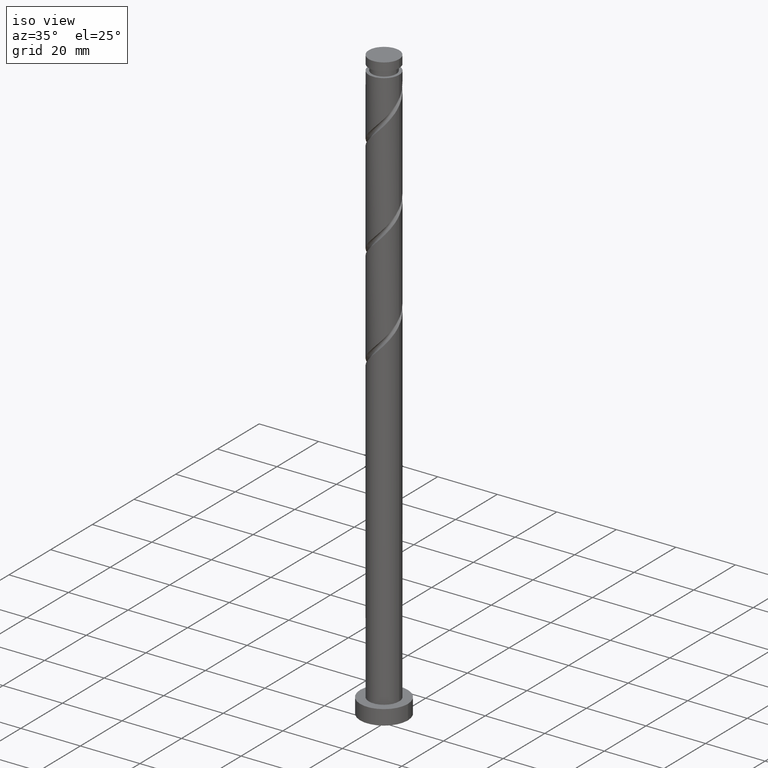
[diagram: clean part render]
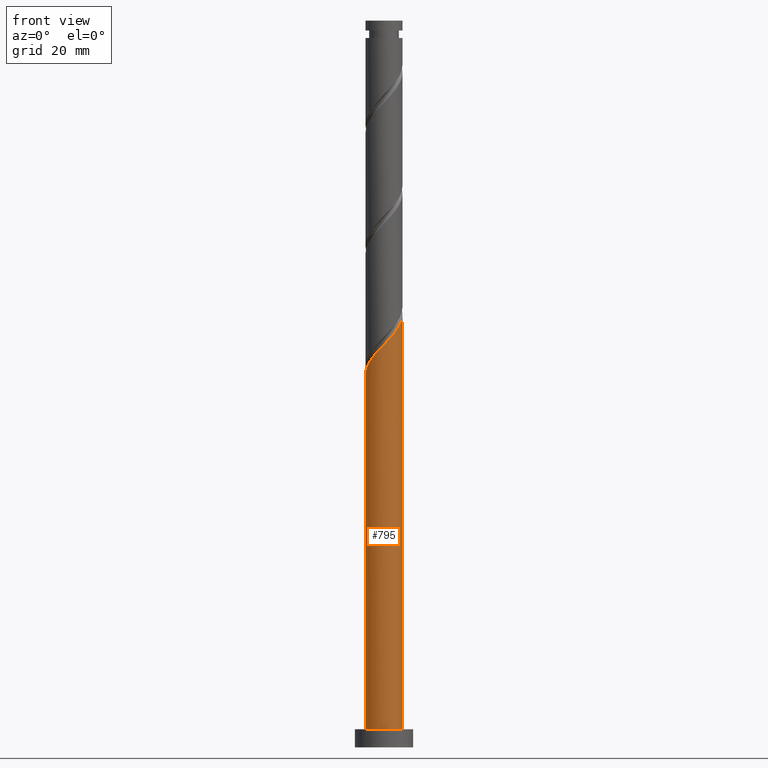
[diagram: tour spotlight — one face highlighted and labeled with its STEP entity id]
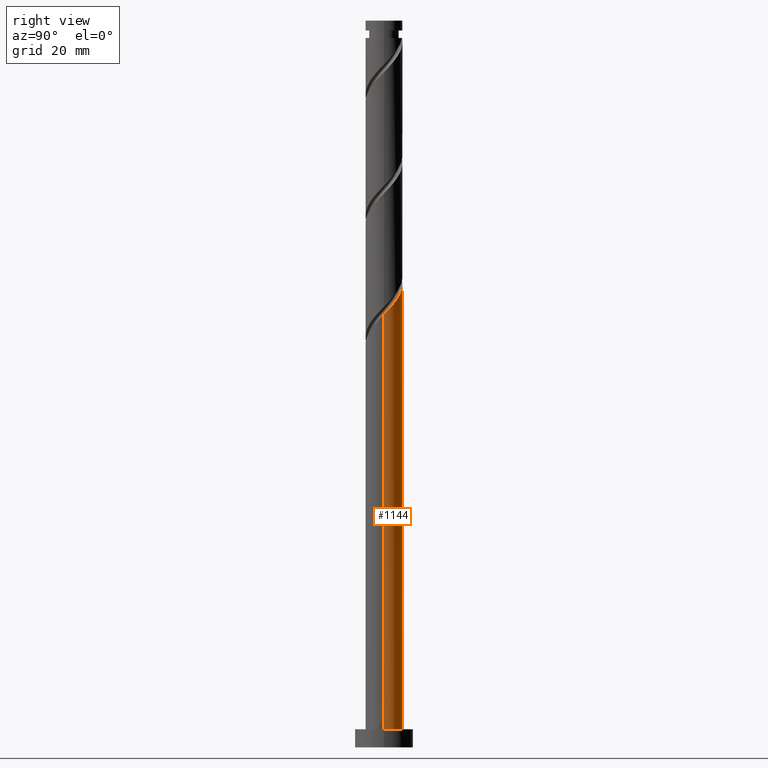
[diagram: tour spotlight — one face highlighted and labeled with its STEP entity id]
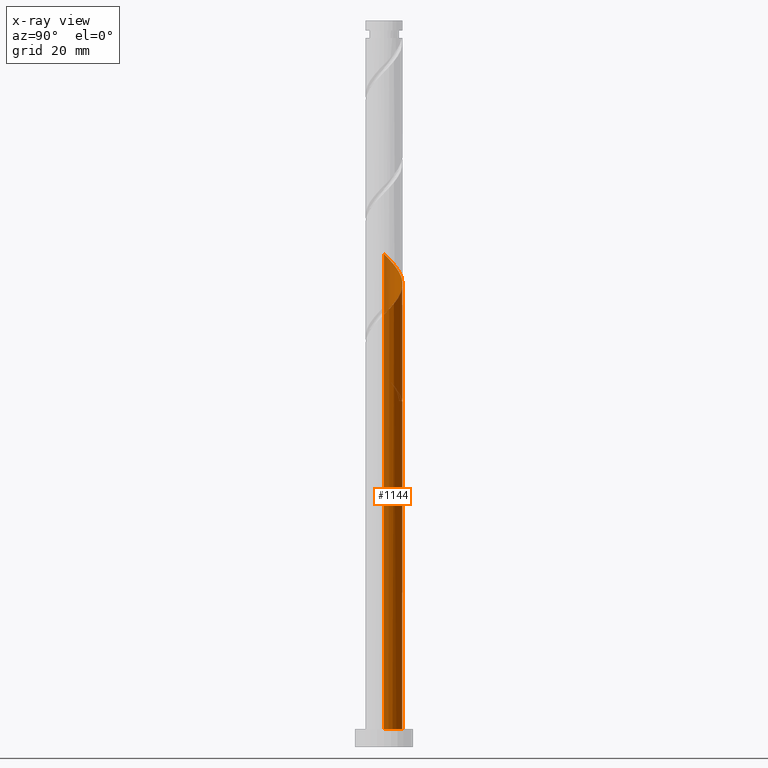
[diagram: x-ray of the same camera — body ghosted, this tour face saturated]
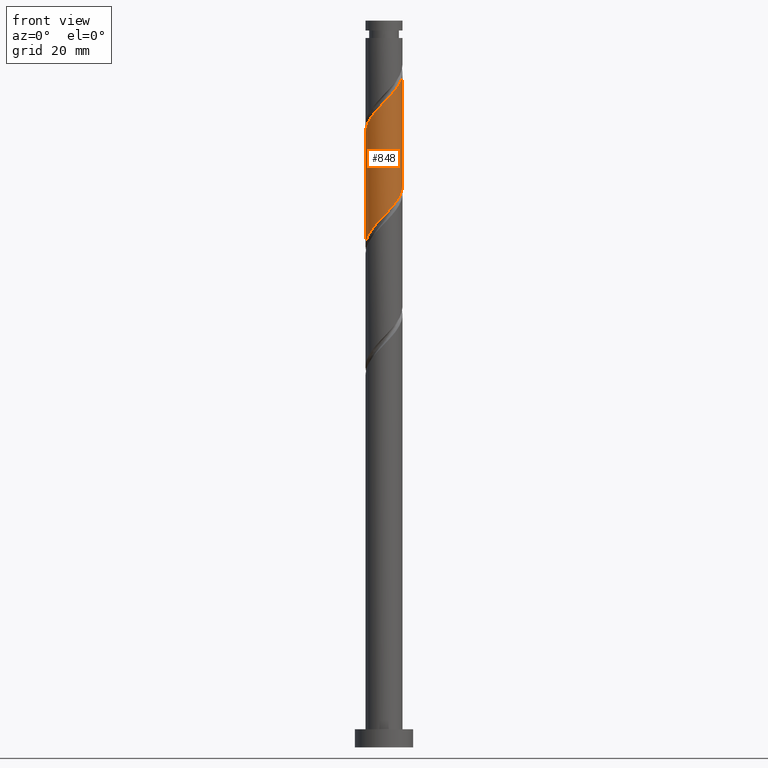
[diagram: tour spotlight — one face highlighted and labeled with its STEP entity id]
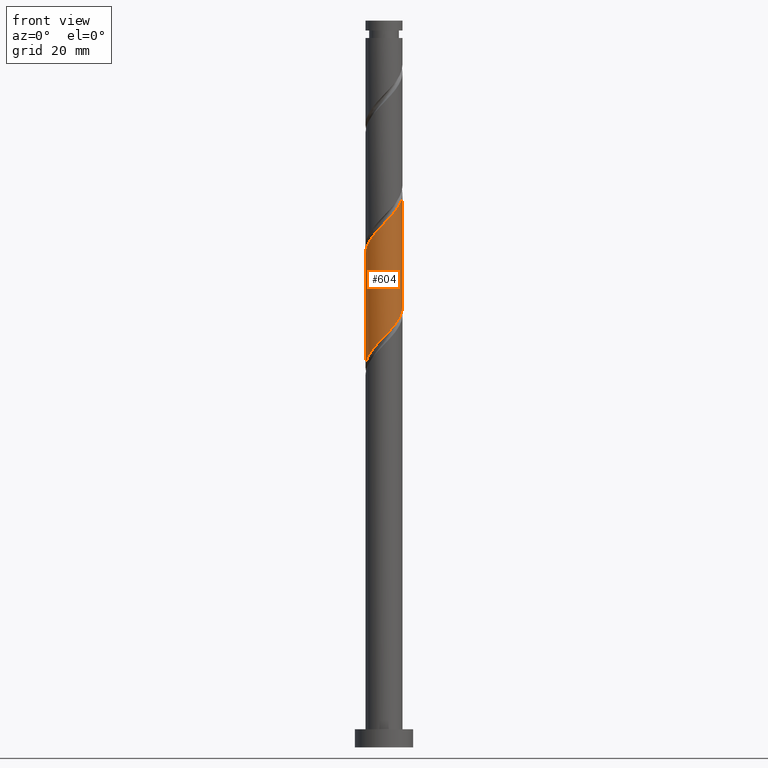
[diagram: tour spotlight — one face highlighted and labeled with its STEP entity id]
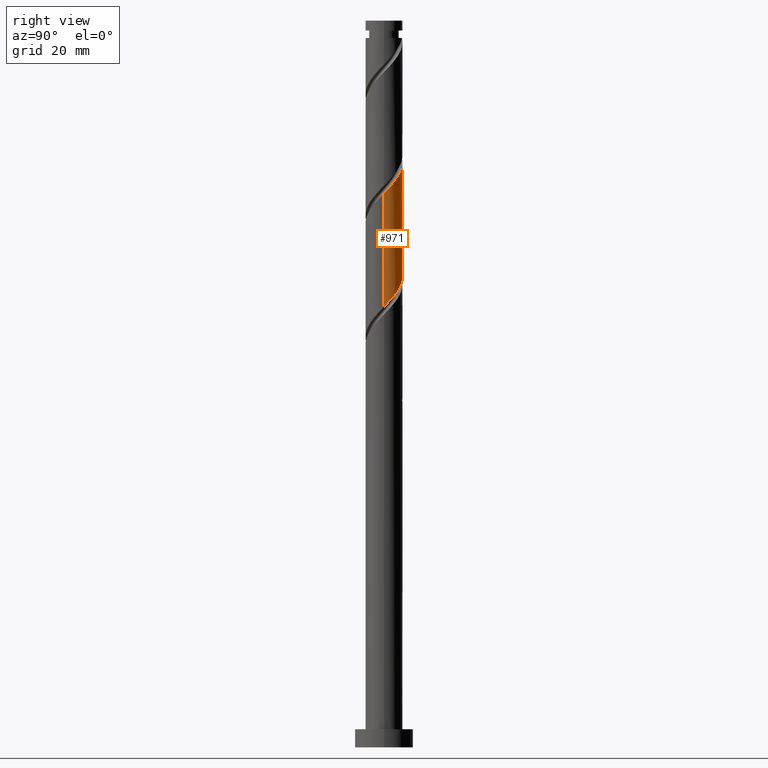
[diagram: tour spotlight — one face highlighted and labeled with its STEP entity id]
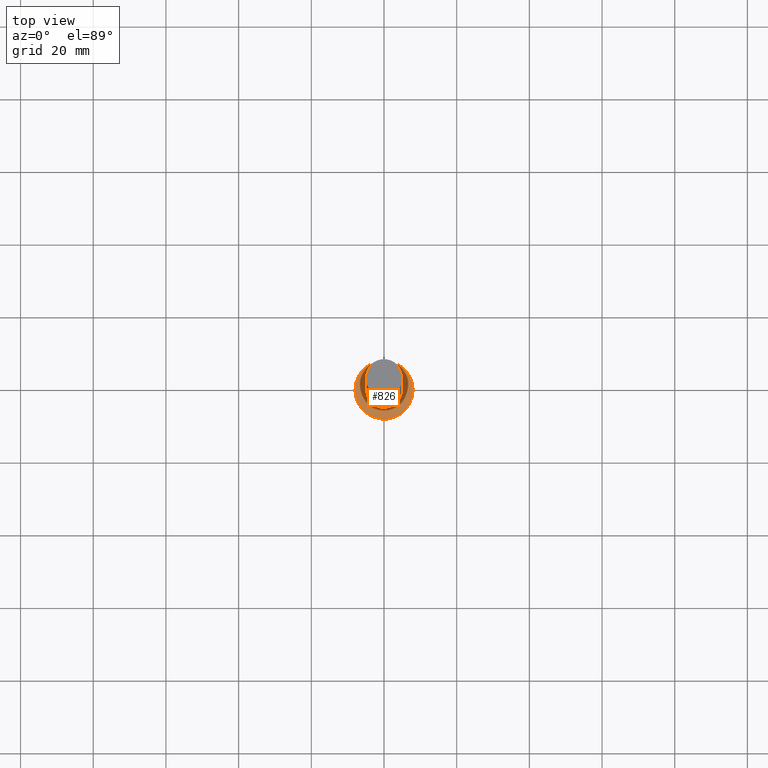
[diagram: tour spotlight — one face highlighted and labeled with its STEP entity id]
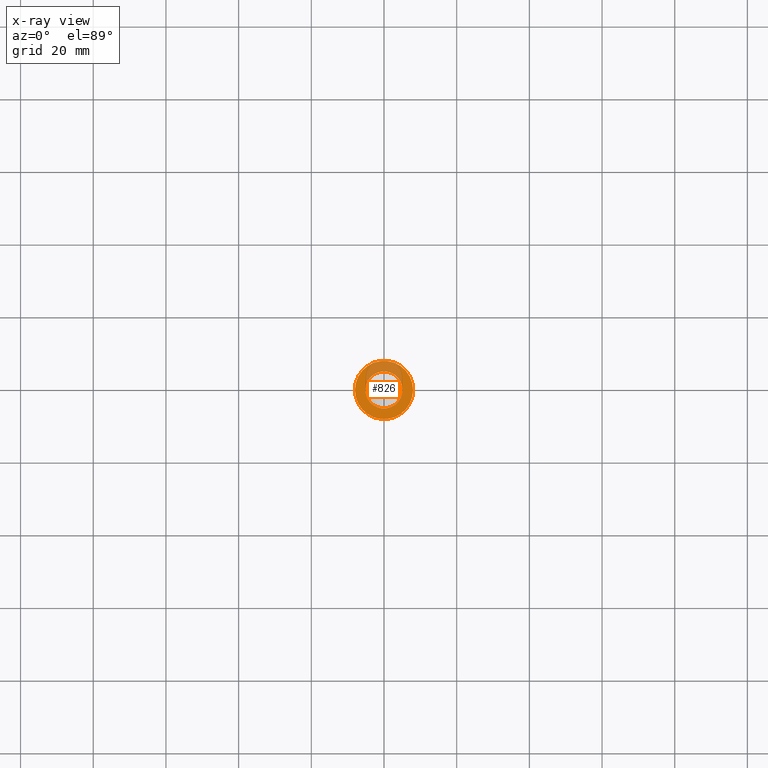
[diagram: x-ray of the same camera — body ghosted, this tour face saturated]
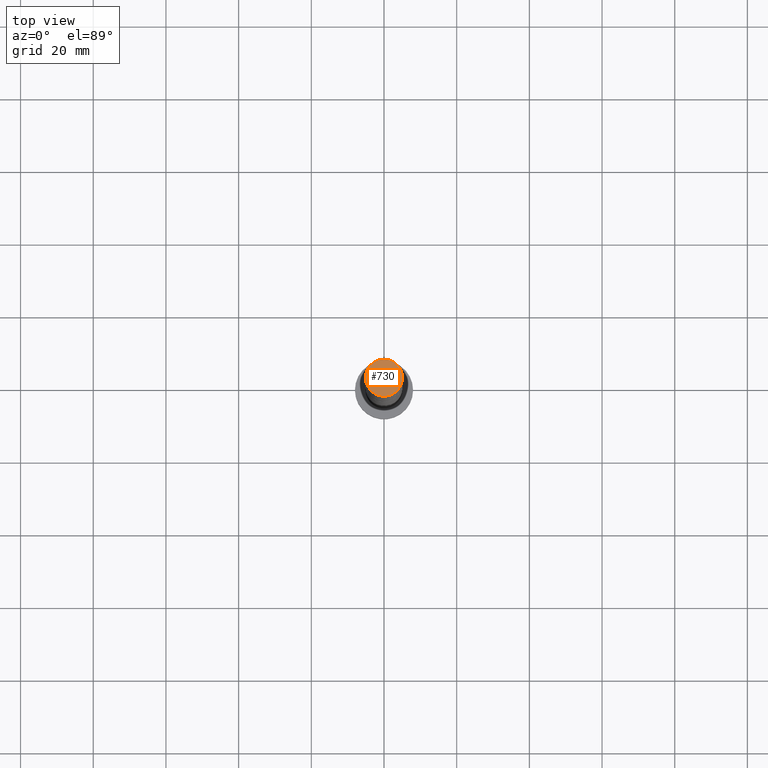
[diagram: tour spotlight — one face highlighted and labeled with its STEP entity id]
A machine part: a face-by-face anatomy tour. The part has 21 B-rep faces; the first image is the clean iso view, then the 7 largest visible faces are spotlighted one at a time (largest first), each with its STEP entity span.

Face 1 — front view, entity #795. In plain terms, the highlighted cylindrical surface (edge-blend (fillet) strip) has radius 5.1 mm, axis along (-0, -0, -1).
Definition (entity closure, byte-faithful):
#19 = DIRECTION ( 'NONE',  ( 1.000000000000000000, 0.000000000000000000, 0.000000000000000000 ) ) ;
#77 = VERTEX_POINT ( 'NONE', #1455 ) ;
#135 = DIRECTION ( 'NONE',  ( 0.000000000000000000, 0.000000000000000000, 1.000000000000000000 ) ) ;
#156 = CARTESIAN_POINT ( 'NONE',  ( 4.251753303623353908, -2.816486081117385076, 116.0534145468877654 ) ) ;
#177 = CARTESIAN_POINT ( 'NONE',  ( -3.376240022664860785, -3.880955876624113898, 107.0256367691100081 ) ) ;
#208 = ORIENTED_EDGE ( 'NONE', *, *, #932, .F. ) ;
#292 = CARTESIAN_POINT ( 'NONE',  ( -3.820951375190253518, -3.377918084920322084, 106.3311923246655653 ) ) ;
#323 = ORIENTED_EDGE ( 'NONE', *, *, #1567, .F. ) ;
#324 = CARTESIAN_POINT ( 'NONE',  ( 5.100000000000005862, 3.439370422032621447E-16, 119.1565145583443552 ) ) ;
#399 = DIRECTION ( 'NONE',  ( -0.000000000000000000, -0.000000000000000000, -1.000000000000000000 ) ) ;
#402 = CARTESIAN_POINT ( 'NONE',  ( 3.880955876624113898, -3.376240022664860785, 115.3589701024433083 ) ) ;
#420 = CARTESIAN_POINT ( 'NONE',  ( 1.672886368790558853, -4.864387567213577235, 112.5811923246655510 ) ) ;
#429 = CARTESIAN_POINT ( 'NONE',  ( -5.100000000000004086, -0.5125692857822055082, 103.0232742608669554 ) ) ;
#458 =( BOUNDED_CURVE ( )  B_SPLINE_CURVE ( 2, ( #807, #429, #686, #1512, #936, #1070, #292, #177, #961, #572, #824, #1484, #1611, #953, #1354, #420, #1374, #943, #1656, #402, #156, #1476, #1202, #1633, #672, #801, #539 ),
 .UNSPECIFIED., .F., .T. ) 
 B_SPLINE_CURVE_WITH_KNOTS ( ( 3, 2, 2, 2, 2, 2, 2, 2, 2, 2, 2, 2, 2, 3 ),
 ( 0.05453176698144642648, 0.06250000000000000000, 0.07291666666666662966, 0.08333333333333337034, 0.09375000000000000000, 0.1041666666666666297, 0.1145833333333333703, 0.1250000000000000000, 0.1354166666666666297, 0.1458333333333333703, 0.1562500000000000000, 0.1666666666666666297, 0.1770833333333333703, 0.1795317669814462946 ),
 .UNSPECIFIED. ) 
 CURVE ( )  GEOMETRIC_REPRESENTATION_ITEM ( )  RATIONAL_B_SPLINE_CURVE ( ( 0.9062941362546440560, 0.9031415850403485823, 0.9090909090909238266, 0.9013135103398423054, 0.9090909090909238266, 0.9013135103398423054, 0.9090909090909238266, 0.9013135103398423054, 0.9090909090909238266, 0.9013135103398423054, 0.9090909090909238266, 0.9013135103398423054, 0.9090909090909238266, 0.9013135103398423054, 0.9090909090909238266, 0.9013135103398423054, 0.9090909090909238266, 0.9013135103398423054, 0.9090909090909238266, 0.9013135103398423054, 0.9090909090909238266, 0.9013135103398423054, 0.9090909090909238266, 0.9013135103398423054, 0.9090909090909238266, 0.9072628343904175496, 0.9062941362546441670 ) ) 
 REPRESENTATION_ITEM ( '' )  );
#491 = LINE ( 'NONE', #1153, #979 ) ;
#539 = CARTESIAN_POINT ( 'NONE',  ( 5.100000000000005862, 3.439370422032621447E-16, 119.1565145583443694 ) ) ;
#569 = EDGE_LOOP ( 'NONE', ( #323, #208, #674, #697 ) ) ;
#572 = CARTESIAN_POINT ( 'NONE',  ( -2.256732139569908036, -4.622550730622595694, 108.4145256579989081 ) ) ;
#630 = FACE_OUTER_BOUND ( 'NONE', #569, .T. ) ;
#662 = AXIS2_PLACEMENT_3D ( 'NONE', #1434, #1442, #664 ) ;
#664 = DIRECTION ( 'NONE',  ( -1.000000000000000000, 0.000000000000000000, 0.000000000000000000 ) ) ;
#672 = CARTESIAN_POINT ( 'NONE',  ( 5.090369412120927528, -0.3132718438412590567, 118.8311923246655510 ) ) ;
#674 = ORIENTED_EDGE ( 'NONE', *, *, #1220, .T. ) ;
#686 = CARTESIAN_POINT ( 'NONE',  ( -4.998000000000005549, -1.014887185848754036, 103.5534145468877796 ) ) ;
#697 = ORIENTED_EDGE ( 'NONE', *, *, #1612, .T. ) ;
#795 = ADVANCED_FACE ( 'NONE', ( #630 ), #1046, .T. ) ;
#801 = CARTESIAN_POINT ( 'NONE',  ( 5.100000000000006750, -0.1567839534541398405, 118.9933508703162346 ) ) ;
#807 = CARTESIAN_POINT ( 'NONE',  ( -5.100000000000005862, -3.379555284258141100E-15, 102.4898478916776980 ) ) ;
#824 = CARTESIAN_POINT ( 'NONE',  ( -1.620081915079685020, -4.835838561039006223, 109.1089701024433651 ) ) ;
#926 = CARTESIAN_POINT ( 'NONE',  ( 5.099999999999999645, 6.245698675651500839E-16, 5.000000000000000000 ) ) ;
#927 = AXIS2_PLACEMENT_3D ( 'NONE', #1226, #135, #19 ) ;
#932 = EDGE_CURVE ( 'NONE', #77, #1148, #458, .T. ) ;
#936 = CARTESIAN_POINT ( 'NONE',  ( -4.565025147464609745, -2.273883331003545560, 104.9423034357766795 ) ) ;
#943 = CARTESIAN_POINT ( 'NONE',  ( 2.874880293216528937, -4.265662727715649361, 113.9700812135543941 ) ) ;
#953 = CARTESIAN_POINT ( 'NONE',  ( 0.3568880029069468884, -5.131612432786437417, 111.1923034357766511 ) ) ;
#954 = CIRCLE ( 'NONE', #927, 5.099999999999999645 ) ;
#961 = CARTESIAN_POINT ( 'NONE',  ( -2.816486081117382856, -4.251753303623354796, 107.7200812135544510 ) ) ;
#979 = VECTOR ( 'NONE', #1042, 1000.000000000000000 ) ;
#1042 = DIRECTION ( 'NONE',  ( -0.000000000000000000, -0.000000000000000000, -1.000000000000000000 ) ) ;
#1046 = CYLINDRICAL_SURFACE ( 'NONE', #662, 5.099999999999999645 ) ;
#1070 = CARTESIAN_POINT ( 'NONE',  ( -4.265662727715649361, -2.874880293216530269, 105.6367478802211082 ) ) ;
#1148 = VERTEX_POINT ( 'NONE', #324 ) ;
#1153 = CARTESIAN_POINT ( 'NONE',  ( -5.099999999999999645, 0.000000000000000000, 200.0000000000000000 ) ) ;
#1202 = CARTESIAN_POINT ( 'NONE',  ( 4.835838561039006223, -1.620081915079685464, 117.4423034357766511 ) ) ;
#1220 = EDGE_CURVE ( 'NONE', #77, #1332, #491, .T. ) ;
#1226 = CARTESIAN_POINT ( 'NONE',  ( 0.000000000000000000, 0.000000000000000000, 5.000000000000000000 ) ) ;
#1324 = CARTESIAN_POINT ( 'NONE',  ( -5.099999999999999645, 0.000000000000000000, 5.000000000000000000 ) ) ;
#1331 = VECTOR ( 'NONE', #399, 1000.000000000000000 ) ;
#1332 = VERTEX_POINT ( 'NONE', #1324 ) ;
#1354 = CARTESIAN_POINT ( 'NONE',  ( 1.014887185848753592, -4.998000000000005549, 111.8867478802210655 ) ) ;
#1374 = CARTESIAN_POINT ( 'NONE',  ( 2.273883331003543784, -4.565025147464612409, 113.2756367691099939 ) ) ;
#1434 = CARTESIAN_POINT ( 'NONE',  ( 0.000000000000000000, 0.000000000000000000, 200.0000000000000000 ) ) ;
#1442 = DIRECTION ( 'NONE',  ( -0.000000000000000000, -0.000000000000000000, -1.000000000000000000 ) ) ;
#1455 = CARTESIAN_POINT ( 'NONE',  ( -5.100000000000005862, -3.379555284258141100E-15, 102.4898478916777123 ) ) ;
#1476 = CARTESIAN_POINT ( 'NONE',  ( 4.622550730622595694, -2.256732139569908036, 116.7478589913322224 ) ) ;
#1484 = CARTESIAN_POINT ( 'NONE',  ( -0.9834316905894603389, -5.049126391455418528, 109.8034145468877938 ) ) ;
#1512 = CARTESIAN_POINT ( 'NONE',  ( -4.864387567213577235, -1.672886368790559075, 104.2478589913322082 ) ) ;
#1545 = VERTEX_POINT ( 'NONE', #926 ) ;
#1567 = EDGE_CURVE ( 'NONE', #1148, #1545, #1608, .T. ) ;
#1608 = LINE ( 'NONE', #1641, #1331 ) ;
#1611 = CARTESIAN_POINT ( 'NONE',  ( -0.3132718438412566697, -5.090369412120927528, 110.4978589913322224 ) ) ;
#1612 = EDGE_CURVE ( 'NONE', #1332, #1545, #954, .T. ) ;
#1633 = CARTESIAN_POINT ( 'NONE',  ( 5.049126391455418528, -0.9834316905894626704, 118.1367478802211224 ) ) ;
#1641 = CARTESIAN_POINT ( 'NONE',  ( 5.099999999999999645, 6.245698675651500839E-16, 200.0000000000000000 ) ) ;
#1656 = CARTESIAN_POINT ( 'NONE',  ( 3.377918084920322084, -3.820951375190254407, 114.6645256579988796 ) ) ;

Face 2 — right view, entity #1144. An x-ray twin of the same camera follows (body ghosted, this face saturated) — the face is partly hidden behind the body. In plain terms, the highlighted cylindrical surface (edge-blend (fillet) strip) has radius 5.1 mm, axis along (-0, -0, -1).
Definition (entity closure, byte-faithful):
#1 = AXIS2_PLACEMENT_3D ( 'NONE', #1542, #84, #1670 ) ;
#4 = CARTESIAN_POINT ( 'NONE',  ( -1.014887185848753148, 4.998000000000005549, 128.5534145468877796 ) ) ;
#5 = CARTESIAN_POINT ( 'NONE',  ( -5.090369412120927528, 0.3132718438412563922, 102.1645256579988654 ) ) ;
#17 = CARTESIAN_POINT ( 'NONE',  ( -2.874880293216532490, 4.265662727715646696, 130.6367478802210940 ) ) ;
#28 = CARTESIAN_POINT ( 'NONE',  ( -5.100000000000005862, -3.379555284258141100E-15, 102.4898478916776980 ) ) ;
#41 = ORIENTED_EDGE ( 'NONE', *, *, #1514, .F. ) ;
#43 = DIRECTION ( 'NONE',  ( -0.000000000000000000, -0.000000000000000000, -1.000000000000000000 ) ) ;
#62 = DIRECTION ( 'NONE',  ( 0.000000000000000000, 1.000000000000000000, -8.163404592832033571E-15 ) ) ;
#77 = VERTEX_POINT ( 'NONE', #1455 ) ;
#84 = DIRECTION ( 'NONE',  ( 0.000000000000000000, 0.000000000000000000, 1.000000000000000000 ) ) ;
#100 = CARTESIAN_POINT ( 'NONE',  ( -1.014887185848752926, 4.998000000000006438, 95.22008121355443677 ) ) ;
#145 = CARTESIAN_POINT ( 'NONE',  ( -3.377918084920323416, 3.820951375190253518, 97.99785899133223666 ) ) ;
#153 = CARTESIAN_POINT ( 'NONE',  ( -5.090369412120927528, 0.3132718438412563922, 135.4978589913322082 ) ) ;
#154 = CARTESIAN_POINT ( 'NONE',  ( -1.014887185848752926, 4.998000000000006438, 95.22008121355443677 ) ) ;
#184 = CYLINDRICAL_SURFACE ( 'NONE', #1251, 5.099999999999999645 ) ;
#188 = EDGE_CURVE ( 'NONE', #1532, #1698, #1719, .T. ) ;
#211 = DIRECTION ( 'NONE',  ( -0.000000000000000000, -0.000000000000000000, -1.000000000000000000 ) ) ;
#239 = EDGE_CURVE ( 'NONE', #1148, #1430, #685, .T. ) ;
#260 = CARTESIAN_POINT ( 'NONE',  ( 2.816486081117384188, 4.251753303623354796, 124.3867478802211224 ) ) ;
#271 = CARTESIAN_POINT ( 'NONE',  ( -0.3132718438412538942, 5.090369412120920423, 96.60897010244330829 ) ) ;
#278 = CARTESIAN_POINT ( 'NONE',  ( -3.377918084920323416, 3.820951375190253518, 131.3311923246655226 ) ) ;
#279 = CARTESIAN_POINT ( 'NONE',  ( -4.622550730622595694, 2.256732139569907591, 100.0811923246655368 ) ) ;
#288 = CARTESIAN_POINT ( 'NONE',  ( 4.565025147464612409, 2.273883331003543784, 121.6089701024432941 ) ) ;
#324 = CARTESIAN_POINT ( 'NONE',  ( 5.100000000000005862, 3.439370422032621447E-16, 119.1565145583443552 ) ) ;
#336 = ORIENTED_EDGE ( 'NONE', *, *, #239, .F. ) ;
#342 = EDGE_CURVE ( 'NONE', #1430, #1532, #725, .T. ) ;
#350 = AXIS2_PLACEMENT_3D ( 'NONE', #729, #613, #62 ) ;
#398 = CARTESIAN_POINT ( 'NONE',  ( -4.265662727715638702, 2.874880293216528493, 101.4700812135543941 ) ) ;
#399 = DIRECTION ( 'NONE',  ( -0.000000000000000000, -0.000000000000000000, -1.000000000000000000 ) ) ;
#409 = CARTESIAN_POINT ( 'NONE',  ( -1.672886368790559519, 4.864387567213574570, 129.2478589913322367 ) ) ;
#410 = CARTESIAN_POINT ( 'NONE',  ( -1.672886368790559519, 4.864387567213574570, 95.91452565799889385 ) ) ;
#417 = CARTESIAN_POINT ( 'NONE',  ( -2.874880293216532490, 4.265662727715646696, 97.30341454688776537 ) ) ;
#432 = CIRCLE ( 'NONE', #350, 5.099999999999999645 ) ;
#491 = LINE ( 'NONE', #1153, #979 ) ;
#535 = CARTESIAN_POINT ( 'NONE',  ( -3.820951375190246413, 3.377918084920319863, 100.7756367691100081 ) ) ;
#551 = CARTESIAN_POINT ( 'NONE',  ( -4.864387567213565688, 1.672886368790558187, 102.8589701024432799 ) ) ;
#561 = CARTESIAN_POINT ( 'NONE',  ( -3.880955876624114786, 3.376240022664860785, 132.0256367691100081 ) ) ;
#562 = CARTESIAN_POINT ( 'NONE',  ( -4.835838561039006223, 1.620081915079683466, 100.7756367691100081 ) ) ;
#594 = FACE_OUTER_BOUND ( 'NONE', #1691, .T. ) ;
#613 = DIRECTION ( 'NONE',  ( -1.510533289715479076E-30, -6.802837160693365779E-15, -1.000000000000000000 ) ) ;
#667 = ORIENTED_EDGE ( 'NONE', *, *, #342, .F. ) ;
#668 = CARTESIAN_POINT ( 'NONE',  ( -1.620081915079679469, 4.835838561039000005, 97.99785899133223666 ) ) ;
#675 = CARTESIAN_POINT ( 'NONE',  ( 1.014887185848754703, 4.997999999999998444, 95.22008121355442256 ) ) ;
#685 =( BOUNDED_CURVE ( )  B_SPLINE_CURVE ( 2, ( #1234, #797, #1205, #939, #288, #1333, #1196, #1464, #260, #1742, #1747, #949, #1597, #1619, #4, #409, #934, #17, #278, #561, #803, #1348, #821, #917, #153, #1371, #789 ),
 .UNSPECIFIED., .F., .T. ) 
 B_SPLINE_CURVE_WITH_KNOTS ( ( 3, 2, 2, 2, 2, 2, 2, 2, 2, 2, 2, 2, 2, 3 ),
 ( 0.1795317669814462946, 0.1875000000000000000, 0.1979166666666666297, 0.2083333333333333703, 0.2187500000000000000, 0.2291666666666666297, 0.2395833333333333703, 0.2500000000000000000, 0.2604166666666666297, 0.2708333333333333703, 0.2812500000000000000, 0.2916666666666666297, 0.3020833333333333703, 0.3045317669814465722 ),
 .UNSPECIFIED. ) 
 CURVE ( )  GEOMETRIC_REPRESENTATION_ITEM ( )  RATIONAL_B_SPLINE_CURVE ( ( 0.9062941362546441670, 0.9031415850403483603, 0.9090909090909238266, 0.9013135103398423054, 0.9090909090909238266, 0.9013135103398423054, 0.9090909090909238266, 0.9013135103398423054, 0.9090909090909238266, 0.9013135103398423054, 0.9090909090909238266, 0.9013135103398423054, 0.9090909090909238266, 0.9013135103398423054, 0.9090909090909238266, 0.9013135103398423054, 0.9090909090909238266, 0.9013135103398423054, 0.9090909090909238266, 0.9013135103398423054, 0.9090909090909238266, 0.9013135103398423054, 0.9090909090909238266, 0.9013135103398423054, 0.9090909090909238266, 0.9072628343904174386, 0.9062941362546439450 ) ) 
 REPRESENTATION_ITEM ( '' )  );
#725 = LINE ( 'NONE', #1112, #1037 ) ;
#729 = CARTESIAN_POINT ( 'NONE',  ( 0.000000000000000000, 0.000000000000000000, 95.22008121355446519 ) ) ;
#779 = ORIENTED_EDGE ( 'NONE', *, *, #188, .F. ) ;
#789 = CARTESIAN_POINT ( 'NONE',  ( -5.100000000000005862, -3.379555284258141100E-15, 135.8231812250110409 ) ) ;
#790 = CARTESIAN_POINT ( 'NONE',  ( -5.049126391455418528, 0.9834316905894598948, 101.4700812135544368 ) ) ;
#797 = CARTESIAN_POINT ( 'NONE',  ( 5.100000000000007638, 0.5125692857821940729, 119.6899409275336836 ) ) ;
#803 = CARTESIAN_POINT ( 'NONE',  ( -4.251753303623354796, 2.816486081117382856, 132.7200812135544652 ) ) ;
#808 =( BOUNDED_CURVE ( )  B_SPLINE_CURVE ( 2, ( #154, #410, #1095, #417, #145, #1084, #1465, #279, #562, #790, #5, #1350, #28 ),
 .UNSPECIFIED., .F., .T. ) 
 B_SPLINE_CURVE_WITH_KNOTS ( ( 3, 2, 2, 2, 2, 2, 3 ),
 ( 0.000000000000000000, 0.01041666666666662966, 0.02083333333333337034, 0.03125000000000000000, 0.04166666666666662966, 0.05208333333333337034, 0.05453176698144642648 ),
 .UNSPECIFIED. ) 
 CURVE ( )  GEOMETRIC_REPRESENTATION_ITEM ( )  RATIONAL_B_SPLINE_CURVE ( ( 0.9090909090909238266, 0.9013135103398423054, 0.9090909090909238266, 0.9013135103398423054, 0.9090909090909238266, 0.9013135103398423054, 0.9090909090909238266, 0.9013135103398423054, 0.9090909090909238266, 0.9013135103398423054, 0.9090909090909238266, 0.9072628343904174386, 0.9062941362546440560 ) ) 
 REPRESENTATION_ITEM ( '' )  );
#810 = ORIENTED_EDGE ( 'NONE', *, *, #1162, .T. ) ;
#821 = CARTESIAN_POINT ( 'NONE',  ( -4.835838561039006223, 1.620081915079683466, 134.1089701024433225 ) ) ;
#847 = VERTEX_POINT ( 'NONE', #100 ) ;
#874 = CIRCLE ( 'NONE', #1, 5.099999999999999645 ) ;
#917 = CARTESIAN_POINT ( 'NONE',  ( -5.049126391455418528, 0.9834316905894598948, 134.8034145468878080 ) ) ;
#925 = CARTESIAN_POINT ( 'NONE',  ( 0.3568880029069491089, 5.131612432786430311, 95.91452565799885122 ) ) ;
#926 = CARTESIAN_POINT ( 'NONE',  ( 5.099999999999999645, 6.245698675651500839E-16, 5.000000000000000000 ) ) ;
#934 = CARTESIAN_POINT ( 'NONE',  ( -2.273883331003545560, 4.565025147464609745, 129.9423034357766653 ) ) ;
#939 = CARTESIAN_POINT ( 'NONE',  ( 4.864387567213577235, 1.672886368790558409, 120.9145256579988938 ) ) ;
#949 = CARTESIAN_POINT ( 'NONE',  ( 0.9834316905894631144, 5.049126391455418528, 126.4700812135544368 ) ) ;
#979 = VECTOR ( 'NONE', #1042, 1000.000000000000000 ) ;
#1037 = VECTOR ( 'NONE', #211, 1000.000000000000000 ) ;
#1042 = DIRECTION ( 'NONE',  ( -0.000000000000000000, -0.000000000000000000, -1.000000000000000000 ) ) ;
#1056 = CARTESIAN_POINT ( 'NONE',  ( -0.9834316905894574523, 5.049126391455411422, 97.30341454688775116 ) ) ;
#1063 = CARTESIAN_POINT ( 'NONE',  ( -2.816486081117378415, 4.251753303623349467, 99.38674788022112239 ) ) ;
#1073 = ORIENTED_EDGE ( 'NONE', *, *, #1080, .T. ) ;
#1074 = CARTESIAN_POINT ( 'NONE',  ( -3.376240022664852347, 3.880955876624109457, 100.0811923246655226 ) ) ;
#1080 = EDGE_CURVE ( 'NONE', #1545, #1332, #874, .T. ) ;
#1084 = CARTESIAN_POINT ( 'NONE',  ( -3.880955876624114786, 3.376240022664860785, 98.69230343577666531 ) ) ;
#1095 = CARTESIAN_POINT ( 'NONE',  ( -2.273883331003545560, 4.565025147464609745, 96.60897010244332250 ) ) ;
#1112 = CARTESIAN_POINT ( 'NONE',  ( -5.099999999999999645, 0.000000000000000000, 200.0000000000000000 ) ) ;
#1116 = CARTESIAN_POINT ( 'NONE',  ( 0.000000000000000000, 0.000000000000000000, 200.0000000000000000 ) ) ;
#1125 = ORIENTED_EDGE ( 'NONE', *, *, #1567, .T. ) ;
#1144 = ADVANCED_FACE ( 'NONE', ( #594 ), #184, .T. ) ;
#1148 = VERTEX_POINT ( 'NONE', #324 ) ;
#1153 = CARTESIAN_POINT ( 'NONE',  ( -5.099999999999999645, 0.000000000000000000, 200.0000000000000000 ) ) ;
#1162 = EDGE_CURVE ( 'NONE', #847, #1698, #432, .T. ) ;
#1167 = CARTESIAN_POINT ( 'NONE',  ( -5.100000000000005862, -3.379555284258141100E-15, 135.8231812250110409 ) ) ;
#1196 = CARTESIAN_POINT ( 'NONE',  ( 3.820951375190256183, 3.377918084920319863, 122.9978589913321940 ) ) ;
#1205 = CARTESIAN_POINT ( 'NONE',  ( 4.998000000000005549, 1.014887185848753370, 120.2200812135544510 ) ) ;
#1216 = CARTESIAN_POINT ( 'NONE',  ( -5.099999999999998757, 5.846929717455494227E-15, 104.6169812020978043 ) ) ;
#1220 = EDGE_CURVE ( 'NONE', #77, #1332, #491, .T. ) ;
#1234 = CARTESIAN_POINT ( 'NONE',  ( 5.100000000000005862, 3.439370422032621447E-16, 119.1565145583443694 ) ) ;
#1251 = AXIS2_PLACEMENT_3D ( 'NONE', #1116, #43, #1533 ) ;
#1282 = ORIENTED_EDGE ( 'NONE', *, *, #1220, .F. ) ;
#1324 = CARTESIAN_POINT ( 'NONE',  ( -5.099999999999999645, 0.000000000000000000, 5.000000000000000000 ) ) ;
#1331 = VECTOR ( 'NONE', #399, 1000.000000000000000 ) ;
#1332 = VERTEX_POINT ( 'NONE', #1324 ) ;
#1333 = CARTESIAN_POINT ( 'NONE',  ( 4.265662727715649361, 2.874880293216528937, 122.3034145468877796 ) ) ;
#1340 = CARTESIAN_POINT ( 'NONE',  ( -5.099999999999998757, 5.846929717455494227E-15, 104.6169812020978043 ) ) ;
#1341 = CARTESIAN_POINT ( 'NONE',  ( 1.014887185848754703, 4.997999999999998444, 95.22008121355443677 ) ) ;
#1348 = CARTESIAN_POINT ( 'NONE',  ( -4.622550730622595694, 2.256732139569907591, 133.4145256579988654 ) ) ;
#1350 = CARTESIAN_POINT ( 'NONE',  ( -5.100000000000007638, 0.1567839534541284052, 102.3266842036495632 ) ) ;
#1371 = CARTESIAN_POINT ( 'NONE',  ( -5.100000000000007638, 0.1567839534541190516, 135.6600175369828776 ) ) ;
#1430 = VERTEX_POINT ( 'NONE', #1167 ) ;
#1455 = CARTESIAN_POINT ( 'NONE',  ( -5.100000000000005862, -3.379555284258141100E-15, 102.4898478916777123 ) ) ;
#1464 = CARTESIAN_POINT ( 'NONE',  ( 3.376240022664863005, 3.880955876624111678, 123.6923034357766511 ) ) ;
#1465 = CARTESIAN_POINT ( 'NONE',  ( -4.251753303623354796, 2.816486081117382856, 99.38674788022112239 ) ) ;
#1490 = CARTESIAN_POINT ( 'NONE',  ( -4.565025147464603528, 2.273883331003543784, 102.1645256579989081 ) ) ;
#1501 = CARTESIAN_POINT ( 'NONE',  ( -4.997999999999998444, 1.014887185848753592, 103.5534145468877654 ) ) ;
#1514 = EDGE_CURVE ( 'NONE', #847, #77, #808, .T. ) ;
#1532 = VERTEX_POINT ( 'NONE', #1216 ) ;
#1533 = DIRECTION ( 'NONE',  ( -1.000000000000000000, 0.000000000000000000, 0.000000000000000000 ) ) ;
#1542 = CARTESIAN_POINT ( 'NONE',  ( 0.000000000000000000, 0.000000000000000000, 5.000000000000000000 ) ) ;
#1545 = VERTEX_POINT ( 'NONE', #926 ) ;
#1567 = EDGE_CURVE ( 'NONE', #1148, #1545, #1608, .T. ) ;
#1597 = CARTESIAN_POINT ( 'NONE',  ( 0.3132718438412595563, 5.090369412120927528, 127.1645256579988796 ) ) ;
#1607 = CARTESIAN_POINT ( 'NONE',  ( -5.099999999999997868, 0.5125692857822092829, 104.0835548329085185 ) ) ;
#1608 = LINE ( 'NONE', #1641, #1331 ) ;
#1619 = CARTESIAN_POINT ( 'NONE',  ( -0.3568880029069437243, 5.131612432786437417, 127.8589701024433225 ) ) ;
#1629 = CARTESIAN_POINT ( 'NONE',  ( -2.256732139569902262, 4.622550730622587700, 98.69230343577663689 ) ) ;
#1641 = CARTESIAN_POINT ( 'NONE',  ( 5.099999999999999645, 6.245698675651500839E-16, 200.0000000000000000 ) ) ;
#1670 = DIRECTION ( 'NONE',  ( 1.000000000000000000, 0.000000000000000000, 0.000000000000000000 ) ) ;
#1691 = EDGE_LOOP ( 'NONE', ( #336, #1125, #1073, #1282, #41, #810, #779, #667 ) ) ;
#1698 = VERTEX_POINT ( 'NONE', #1341 ) ;
#1719 =( BOUNDED_CURVE ( )  B_SPLINE_CURVE ( 2, ( #1340, #1607, #1501, #551, #1490, #398, #535, #1074, #1063, #1629, #668, #1056, #271, #925, #675 ),
 .UNSPECIFIED., .F., .T. ) 
 B_SPLINE_CURVE_WITH_KNOTS ( ( 3, 2, 2, 2, 2, 2, 2, 3 ),
 ( 0.9295317669814464612, 0.9375000000000000000, 0.9479166666666666297, 0.9583333333333333703, 0.9687500000000000000, 0.9791666666666666297, 0.9895833333333333703, 1.000000000000000000 ),
 .UNSPECIFIED. ) 
 CURVE ( )  GEOMETRIC_REPRESENTATION_ITEM ( )  RATIONAL_B_SPLINE_CURVE ( ( 0.9062941362546379498, 0.9031415850403426981, 0.9090909090909178314, 0.9013135103398364212, 0.9090909090909178314, 0.9013135103398364212, 0.9090909090909178314, 0.9013135103398364212, 0.9090909090909178314, 0.9013135103398364212, 0.9090909090909178314, 0.9013135103398364212, 0.9090909090909178314, 0.9013135103398364212, 0.9090909090909178314 ) ) 
 REPRESENTATION_ITEM ( '' )  );
#1742 = CARTESIAN_POINT ( 'NONE',  ( 2.256732139569908036, 4.622550730622595694, 125.0811923246655510 ) ) ;
#1747 = CARTESIAN_POINT ( 'NONE',  ( 1.620081915079685686, 4.835838561039006223, 125.7756367691099939 ) ) ;

Face 3 — front view, entity #848. In plain terms, the highlighted cylindrical surface (edge-blend (fillet) strip) has radius 5.1 mm, axis along (-0, -0, -1).
Definition (entity closure, byte-faithful):
#75 = CARTESIAN_POINT ( 'NONE',  ( -2.816486081117382856, -4.251753303623354796, 174.3867478802211508 ) ) ;
#103 =( BOUNDED_CURVE ( )  B_SPLINE_CURVE ( 2, ( #767, #1717, #256, #1051, #361, #1705, #1449, #1154, #511, #1566, #249, #784, #655, #385, #391, #1738, #912, #237, #128, #1190, #1601, #921, #1467, #264, #1336, #1644, #546 ),
 .UNSPECIFIED., .F., .T. ) 
 B_SPLINE_CURVE_WITH_KNOTS ( ( 3, 2, 2, 2, 2, 2, 2, 2, 2, 2, 2, 2, 2, 3 ),
 ( 0.5545317669814462391, 0.5625000000000000000, 0.5729166666666666297, 0.5833333333333333703, 0.5937500000000000000, 0.6041666666666666297, 0.6145833333333333703, 0.6250000000000000000, 0.6354166666666666297, 0.6458333333333333703, 0.6562500000000000000, 0.6666666666666666297, 0.6770833333333333703, 0.6795317669814462391 ),
 .UNSPECIFIED. ) 
 CURVE ( )  GEOMETRIC_REPRESENTATION_ITEM ( )  RATIONAL_B_SPLINE_CURVE ( ( 0.9062941362546382829, 0.9031415850403424761, 0.9090909090909178314, 0.9013135103398364212, 0.9090909090909178314, 0.9013135103398364212, 0.9090909090909178314, 0.9013135103398364212, 0.9090909090909178314, 0.9013135103398364212, 0.9090909090909178314, 0.9013135103398364212, 0.9090909090909178314, 0.9013135103398364212, 0.9090909090909178314, 0.9013135103398364212, 0.9090909090909178314, 0.9013135103398364212, 0.9090909090909178314, 0.9013135103398364212, 0.9090909090909178314, 0.9013135103398364212, 0.9090909090909178314, 0.9013135103398364212, 0.9090909090909178314, 0.9072628343904116655, 0.9062941362546382829 ) ) 
 REPRESENTATION_ITEM ( '' )  );
#110 = FACE_OUTER_BOUND ( 'NONE', #368, .T. ) ;
#114 = ORIENTED_EDGE ( 'NONE', *, *, #1478, .F. ) ;
#117 = VERTEX_POINT ( 'NONE', #1083 ) ;
#120 = DIRECTION ( 'NONE',  ( -0.000000000000000000, -0.000000000000000000, -1.000000000000000000 ) ) ;
#128 = CARTESIAN_POINT ( 'NONE',  ( -3.377918084920320752, -3.820951375190245081, 142.4423034357766937 ) ) ;
#148 = CARTESIAN_POINT ( 'NONE',  ( -5.099999999999998757, 5.846929717455494227E-15, 137.9503145354311755 ) ) ;
#183 = ORIENTED_EDGE ( 'NONE', *, *, #775, .F. ) ;
#194 = CARTESIAN_POINT ( 'NONE',  ( -3.376240022664860785, -3.880955876624113898, 173.6923034357766085 ) ) ;
#237 = CARTESIAN_POINT ( 'NONE',  ( -2.874880293216528493, -4.265662727715638702, 143.1367478802210087 ) ) ;
#244 = CARTESIAN_POINT ( 'NONE',  ( 0.000000000000000000, 0.000000000000000000, 200.0000000000000000 ) ) ;
#249 = CARTESIAN_POINT ( 'NONE',  ( 1.620081915079678803, -4.835838561039001782, 147.9978589913322367 ) ) ;
#256 = CARTESIAN_POINT ( 'NONE',  ( 4.997999999999998444, -1.014887185848754259, 153.5534145468877512 ) ) ;
#264 = CARTESIAN_POINT ( 'NONE',  ( -5.049126391455411422, -0.9834316905894557870, 138.9700812135544368 ) ) ;
#316 = CARTESIAN_POINT ( 'NONE',  ( -5.100000000000006750, -1.674823857685449921E-15, 169.1565145583443837 ) ) ;
#327 = CARTESIAN_POINT ( 'NONE',  ( -5.099999999999999645, 0.000000000000000000, 200.0000000000000000 ) ) ;
#361 = CARTESIAN_POINT ( 'NONE',  ( 4.565025147464601751, -2.273883331003546004, 152.1645256579988654 ) ) ;
#368 = EDGE_LOOP ( 'NONE', ( #114, #183, #584, #1650 ) ) ;
#370 = CARTESIAN_POINT ( 'NONE',  ( -1.620081915079685020, -4.835838561039006223, 175.7756367691100081 ) ) ;
#385 = CARTESIAN_POINT ( 'NONE',  ( -0.3568880029069506632, -5.131612432786431199, 145.9145256579988654 ) ) ;
#391 = CARTESIAN_POINT ( 'NONE',  ( -1.014887185848754036, -4.997999999999998444, 145.2200812135544652 ) ) ;
#404 = AXIS2_PLACEMENT_3D ( 'NONE', #244, #120, #650 ) ;
#459 = VERTEX_POINT ( 'NONE', #1527 ) ;
#494 = CARTESIAN_POINT ( 'NONE',  ( -0.3132718438412566697, -5.090369412120927528, 177.1645256579988938 ) ) ;
#507 = CARTESIAN_POINT ( 'NONE',  ( 5.099999999999999645, 6.245698675651500839E-16, 200.0000000000000000 ) ) ;
#511 = CARTESIAN_POINT ( 'NONE',  ( 2.816486081117376195, -4.251753303623351243, 149.3867478802210655 ) ) ;
#517 = CARTESIAN_POINT ( 'NONE',  ( 4.622550730622595694, -2.256732139569908036, 183.4145256579988370 ) ) ;
#524 = EDGE_CURVE ( 'NONE', #1186, #1003, #1539, .T. ) ;
#527 = CARTESIAN_POINT ( 'NONE',  ( 5.090369412120927528, -0.3132718438412590567, 185.4978589913322082 ) ) ;
#546 = CARTESIAN_POINT ( 'NONE',  ( -5.099999999999998757, 5.846929717455494227E-15, 137.9503145354311755 ) ) ;
#584 = ORIENTED_EDGE ( 'NONE', *, *, #524, .T. ) ;
#600 = CARTESIAN_POINT ( 'NONE',  ( -5.100000000000006750, -1.674823857685450118E-15, 169.1565145583443837 ) ) ;
#631 =( BOUNDED_CURVE ( )  B_SPLINE_CURVE ( 2, ( #316, #1266, #1127, #1120, #844, #1543, #1394, #194, #75, #722, #370, #1328, #494, #1317, #756, #1161, #1310, #885, #1178, #1711, #639, #517, #1036, #774, #527, #893, #793 ),
 .UNSPECIFIED., .F., .T. ) 
 B_SPLINE_CURVE_WITH_KNOTS ( ( 3, 2, 2, 2, 2, 2, 2, 2, 2, 2, 2, 2, 2, 3 ),
 ( 0.5545317669814463502, 0.5625000000000000000, 0.5729166666666667407, 0.5833333333333332593, 0.5937500000000000000, 0.6041666666666667407, 0.6145833333333332593, 0.6250000000000000000, 0.6354166666666667407, 0.6458333333333332593, 0.6562500000000000000, 0.6666666666666667407, 0.6770833333333332593, 0.6795317669814464612 ),
 .UNSPECIFIED. ) 
 CURVE ( )  GEOMETRIC_REPRESENTATION_ITEM ( )  RATIONAL_B_SPLINE_CURVE ( ( 0.9062941362546441670, 0.9031415850403485823, 0.9090909090909238266, 0.9013135103398423054, 0.9090909090909238266, 0.9013135103398423054, 0.9090909090909238266, 0.9013135103398423054, 0.9090909090909238266, 0.9013135103398423054, 0.9090909090909238266, 0.9013135103398423054, 0.9090909090909238266, 0.9013135103398423054, 0.9090909090909238266, 0.9013135103398423054, 0.9090909090909238266, 0.9013135103398423054, 0.9090909090909238266, 0.9013135103398423054, 0.9090909090909238266, 0.9013135103398423054, 0.9090909090909238266, 0.9013135103398423054, 0.9090909090909238266, 0.9072628343904174386, 0.9062941362546440560 ) ) 
 REPRESENTATION_ITEM ( '' )  );
#639 = CARTESIAN_POINT ( 'NONE',  ( 4.251753303623353908, -2.816486081117385076, 182.7200812135544368 ) ) ;
#650 = DIRECTION ( 'NONE',  ( -1.000000000000000000, 0.000000000000000000, 0.000000000000000000 ) ) ;
#655 = CARTESIAN_POINT ( 'NONE',  ( 0.3132718438412520068, -5.090369412120920423, 146.6089701024433225 ) ) ;
#722 = CARTESIAN_POINT ( 'NONE',  ( -2.256732139569908036, -4.622550730622595694, 175.0811923246655510 ) ) ;
#756 = CARTESIAN_POINT ( 'NONE',  ( 1.014887185848753592, -4.998000000000005549, 178.5534145468877796 ) ) ;
#767 = CARTESIAN_POINT ( 'NONE',  ( 5.099999999999999645, 7.162862748494070939E-15, 154.6169812020978327 ) ) ;
#774 = CARTESIAN_POINT ( 'NONE',  ( 5.049126391455418528, -0.9834316905894626704, 184.8034145468877796 ) ) ;
#775 = EDGE_CURVE ( 'NONE', #1186, #459, #631, .T. ) ;
#784 = CARTESIAN_POINT ( 'NONE',  ( 0.9834316905894542327, -5.049126391455411422, 147.3034145468877512 ) ) ;
#793 = CARTESIAN_POINT ( 'NONE',  ( 5.100000000000005862, -1.345840599925808307E-15, 185.8231812250110977 ) ) ;
#805 = DIRECTION ( 'NONE',  ( -0.000000000000000000, -0.000000000000000000, -1.000000000000000000 ) ) ;
#844 = CARTESIAN_POINT ( 'NONE',  ( -4.565025147464609745, -2.273883331003545560, 171.6089701024433225 ) ) ;
#848 = ADVANCED_FACE ( 'NONE', ( #110 ), #1574, .T. ) ;
#885 = CARTESIAN_POINT ( 'NONE',  ( 2.874880293216528937, -4.265662727715649361, 180.6367478802211224 ) ) ;
#886 = EDGE_CURVE ( 'NONE', #117, #1003, #103, .T. ) ;
#893 = CARTESIAN_POINT ( 'NONE',  ( 5.100000000000007638, -0.1567839534541237423, 185.6600175369829060 ) ) ;
#912 = CARTESIAN_POINT ( 'NONE',  ( -2.273883331003543784, -4.565025147464603528, 143.8311923246655510 ) ) ;
#921 = CARTESIAN_POINT ( 'NONE',  ( -4.622550730622588588, -2.256732139569901818, 140.3589701024432941 ) ) ;
#1003 = VERTEX_POINT ( 'NONE', #148 ) ;
#1036 = CARTESIAN_POINT ( 'NONE',  ( 4.835838561039006223, -1.620081915079685464, 184.1089701024433793 ) ) ;
#1051 = CARTESIAN_POINT ( 'NONE',  ( 4.864387567213564800, -1.672886368790561518, 152.8589701024433225 ) ) ;
#1083 = CARTESIAN_POINT ( 'NONE',  ( 5.099999999999999645, 7.162862748494070939E-15, 154.6169812020978327 ) ) ;
#1120 = CARTESIAN_POINT ( 'NONE',  ( -4.864387567213577235, -1.672886368790559075, 170.9145256579988938 ) ) ;
#1127 = CARTESIAN_POINT ( 'NONE',  ( -4.998000000000005549, -1.014887185848754036, 170.2200812135544652 ) ) ;
#1128 = VECTOR ( 'NONE', #805, 1000.000000000000000 ) ;
#1154 = CARTESIAN_POINT ( 'NONE',  ( 3.376240022664851903, -3.880955876624109901, 150.0811923246655510 ) ) ;
#1161 = CARTESIAN_POINT ( 'NONE',  ( 1.672886368790558853, -4.864387567213577235, 179.2478589913322367 ) ) ;
#1178 = CARTESIAN_POINT ( 'NONE',  ( 3.377918084920322084, -3.820951375190254407, 181.3311923246655510 ) ) ;
#1186 = VERTEX_POINT ( 'NONE', #600 ) ;
#1190 = CARTESIAN_POINT ( 'NONE',  ( -3.880955876624109901, -3.376240022664852347, 141.7478589913322367 ) ) ;
#1213 = VECTOR ( 'NONE', #1403, 1000.000000000000000 ) ;
#1266 = CARTESIAN_POINT ( 'NONE',  ( -5.100000000000004974, -0.5125692857822059523, 169.6899409275336268 ) ) ;
#1310 = CARTESIAN_POINT ( 'NONE',  ( 2.273883331003543784, -4.565025147464612409, 179.9423034357766937 ) ) ;
#1317 = CARTESIAN_POINT ( 'NONE',  ( 0.3568880029069468884, -5.131612432786437417, 177.8589701024433225 ) ) ;
#1328 = CARTESIAN_POINT ( 'NONE',  ( -0.9834316905894603389, -5.049126391455418528, 176.4700812135544652 ) ) ;
#1336 = CARTESIAN_POINT ( 'NONE',  ( -5.090369412120920423, -0.3132718438412534501, 138.2756367691100081 ) ) ;
#1394 = CARTESIAN_POINT ( 'NONE',  ( -3.820951375190253518, -3.377918084920322084, 172.9978589913322367 ) ) ;
#1403 = DIRECTION ( 'NONE',  ( -0.000000000000000000, -0.000000000000000000, -1.000000000000000000 ) ) ;
#1449 = CARTESIAN_POINT ( 'NONE',  ( 3.820951375190245081, -3.377918084920320752, 150.7756367691099797 ) ) ;
#1467 = CARTESIAN_POINT ( 'NONE',  ( -4.835838561039000005, -1.620081915079678803, 139.6645256579989223 ) ) ;
#1478 = EDGE_CURVE ( 'NONE', #459, #117, #1714, .T. ) ;
#1527 = CARTESIAN_POINT ( 'NONE',  ( 5.100000000000006750, -1.345840599925808307E-15, 185.8231812250110977 ) ) ;
#1539 = LINE ( 'NONE', #327, #1213 ) ;
#1543 = CARTESIAN_POINT ( 'NONE',  ( -4.265662727715649361, -2.874880293216530269, 172.3034145468877796 ) ) ;
#1566 = CARTESIAN_POINT ( 'NONE',  ( 2.256732139569901818, -4.622550730622588588, 148.6923034357766085 ) ) ;
#1574 = CYLINDRICAL_SURFACE ( 'NONE', #404, 5.099999999999999645 ) ;
#1601 = CARTESIAN_POINT ( 'NONE',  ( -4.251753303623349467, -2.816486081117378415, 141.0534145468877512 ) ) ;
#1644 = CARTESIAN_POINT ( 'NONE',  ( -5.099999999999999645, -0.1567839534541376478, 138.1134782234593104 ) ) ;
#1650 = ORIENTED_EDGE ( 'NONE', *, *, #886, .F. ) ;
#1705 = CARTESIAN_POINT ( 'NONE',  ( 4.265662727715638702, -2.874880293216529381, 151.4700812135543799 ) ) ;
#1711 = CARTESIAN_POINT ( 'NONE',  ( 3.880955876624113898, -3.376240022664860785, 182.0256367691100365 ) ) ;
#1714 = LINE ( 'NONE', #507, #1128 ) ;
#1717 = CARTESIAN_POINT ( 'NONE',  ( 5.100000000000000533, -0.5125692857821958492, 154.0835548329085611 ) ) ;
#1738 = CARTESIAN_POINT ( 'NONE',  ( -1.672886368790559519, -4.864387567213565688, 144.5256367691099797 ) ) ;

Face 4 — front view, entity #604. In plain terms, the highlighted cylindrical surface (edge-blend (fillet) strip) has radius 5.1 mm, axis along (-0, -0, -1).
Definition (entity closure, byte-faithful):
#11 = CARTESIAN_POINT ( 'NONE',  ( -3.880955876624109901, -3.376240022664852347, 108.4145256579988512 ) ) ;
#149 = CARTESIAN_POINT ( 'NONE',  ( 0.9834316905894542327, -5.049126391455411422, 113.9700812135543941 ) ) ;
#172 = CARTESIAN_POINT ( 'NONE',  ( 5.099999999999999645, 7.162862748494070939E-15, 121.2836478687645325 ) ) ;
#185 = CARTESIAN_POINT ( 'NONE',  ( -1.672886368790559519, -4.864387567213565688, 111.1923034357766085 ) ) ;
#211 = DIRECTION ( 'NONE',  ( -0.000000000000000000, -0.000000000000000000, -1.000000000000000000 ) ) ;
#216 = CARTESIAN_POINT ( 'NONE',  ( -0.9834316905894603389, -5.049126391455418528, 143.1367478802210940 ) ) ;
#298 = CARTESIAN_POINT ( 'NONE',  ( 5.100000000000005862, 3.439370422032621447E-16, 152.4898478916777265 ) ) ;
#301 = CARTESIAN_POINT ( 'NONE',  ( -5.099999999999998757, 5.846929717455494227E-15, 104.6169812020978043 ) ) ;
#341 = CARTESIAN_POINT ( 'NONE',  ( -2.256732139569908036, -4.622550730622595694, 141.7478589913322082 ) ) ;
#342 = EDGE_CURVE ( 'NONE', #1430, #1532, #725, .T. ) ;
#352 = CARTESIAN_POINT ( 'NONE',  ( -4.565025147464609745, -2.273883331003545560, 138.2756367691100081 ) ) ;
#381 = CARTESIAN_POINT ( 'NONE',  ( 5.100000000000006750, -0.1567839534541398405, 152.3266842036495632 ) ) ;
#414 = CARTESIAN_POINT ( 'NONE',  ( 2.816486081117376195, -4.251753303623351243, 116.0534145468877938 ) ) ;
#430 = FACE_OUTER_BOUND ( 'NONE', #1724, .T. ) ;
#439 = CARTESIAN_POINT ( 'NONE',  ( -4.622550730622588588, -2.256732139569901818, 107.0256367691099655 ) ) ;
#465 = CARTESIAN_POINT ( 'NONE',  ( -4.864387567213577235, -1.672886368790559075, 137.5811923246655510 ) ) ;
#474 = CARTESIAN_POINT ( 'NONE',  ( -3.820951375190253518, -3.377918084920322084, 139.6645256579988938 ) ) ;
#477 = ORIENTED_EDGE ( 'NONE', *, *, #882, .F. ) ;
#499 =( BOUNDED_CURVE ( )  B_SPLINE_CURVE ( 2, ( #172, #1101, #694, #1384, #1345, #688, #956, #1238, #414, #1253, #1505, #149, #1635, #1088, #1657, #185, #827, #819, #681, #11, #588, #439, #1211, #931, #1750, #937, #301 ),
 .UNSPECIFIED., .F., .T. ) 
 B_SPLINE_CURVE_WITH_KNOTS ( ( 3, 2, 2, 2, 2, 2, 2, 2, 2, 2, 2, 2, 2, 3 ),
 ( 0.8045317669814462391, 0.8125000000000000000, 0.8229166666666666297, 0.8333333333333333703, 0.8437500000000000000, 0.8541666666666666297, 0.8645833333333333703, 0.8750000000000000000, 0.8854166666666666297, 0.8958333333333333703, 0.9062500000000000000, 0.9166666666666666297, 0.9270833333333333703, 0.9295317669814464612 ),
 .UNSPECIFIED. ) 
 CURVE ( )  GEOMETRIC_REPRESENTATION_ITEM ( )  RATIONAL_B_SPLINE_CURVE ( ( 0.9062941362546382829, 0.9031415850403424761, 0.9090909090909178314, 0.9013135103398364212, 0.9090909090909178314, 0.9013135103398364212, 0.9090909090909178314, 0.9013135103398364212, 0.9090909090909178314, 0.9013135103398364212, 0.9090909090909178314, 0.9013135103398364212, 0.9090909090909178314, 0.9013135103398364212, 0.9090909090909178314, 0.9013135103398364212, 0.9090909090909178314, 0.9013135103398364212, 0.9090909090909178314, 0.9013135103398364212, 0.9090909090909178314, 0.9013135103398364212, 0.9090909090909178314, 0.9013135103398364212, 0.9090909090909178314, 0.9072628343904114434, 0.9062941362546379498 ) ) 
 REPRESENTATION_ITEM ( '' )  );
#558 = EDGE_CURVE ( 'NONE', #1359, #1532, #499, .T. ) ;
#574 = CYLINDRICAL_SURFACE ( 'NONE', #1704, 5.099999999999999645 ) ;
#588 = CARTESIAN_POINT ( 'NONE',  ( -4.251753303623349467, -2.816486081117378415, 107.7200812135544368 ) ) ;
#604 = ADVANCED_FACE ( 'NONE', ( #430 ), #574, .T. ) ;
#623 = CARTESIAN_POINT ( 'NONE',  ( 0.3568880029069468884, -5.131612432786437417, 144.5256367691100081 ) ) ;
#632 = ORIENTED_EDGE ( 'NONE', *, *, #1197, .F. ) ;
#637 = CARTESIAN_POINT ( 'NONE',  ( 5.099999999999999645, 7.162862748494070939E-15, 121.2836478687645325 ) ) ;
#681 = CARTESIAN_POINT ( 'NONE',  ( -3.377918084920320752, -3.820951375190245081, 109.1089701024433225 ) ) ;
#688 = CARTESIAN_POINT ( 'NONE',  ( 4.265662727715638702, -2.874880293216529381, 118.1367478802211082 ) ) ;
#694 = CARTESIAN_POINT ( 'NONE',  ( 4.997999999999998444, -1.014887185848754259, 120.2200812135544652 ) ) ;
#709 = CARTESIAN_POINT ( 'NONE',  ( 3.377918084920322084, -3.820951375190254407, 147.9978589913322651 ) ) ;
#725 = LINE ( 'NONE', #1112, #1037 ) ;
#745 = CARTESIAN_POINT ( 'NONE',  ( -0.3132718438412566697, -5.090369412120927528, 143.8311923246655226 ) ) ;
#755 = CARTESIAN_POINT ( 'NONE',  ( 3.880955876624113898, -3.376240022664860785, 148.6923034357766085 ) ) ;
#771 = CARTESIAN_POINT ( 'NONE',  ( 4.251753303623353908, -2.816486081117385076, 149.3867478802210655 ) ) ;
#791 = VECTOR ( 'NONE', #1459, 1000.000000000000000 ) ;
#819 = CARTESIAN_POINT ( 'NONE',  ( -2.874880293216528493, -4.265662727715638702, 109.8034145468877369 ) ) ;
#827 = CARTESIAN_POINT ( 'NONE',  ( -2.273883331003543784, -4.565025147464603528, 110.4978589913322082 ) ) ;
#872 = CARTESIAN_POINT ( 'NONE',  ( -3.376240022664860785, -3.880955876624113898, 140.3589701024433225 ) ) ;
#879 = CARTESIAN_POINT ( 'NONE',  ( 4.622550730622595694, -2.256732139569908036, 150.0811923246655795 ) ) ;
#882 = EDGE_CURVE ( 'NONE', #1638, #1359, #1019, .T. ) ;
#931 = CARTESIAN_POINT ( 'NONE',  ( -5.049126391455411422, -0.9834316905894557870, 105.6367478802210798 ) ) ;
#937 = CARTESIAN_POINT ( 'NONE',  ( -5.100000000000000533, -0.1567839534541234647, 104.7801448901259818 ) ) ;
#956 = CARTESIAN_POINT ( 'NONE',  ( 3.820951375190245081, -3.377918084920320752, 117.4423034357766653 ) ) ;
#960 = ORIENTED_EDGE ( 'NONE', *, *, #558, .F. ) ;
#967 = CARTESIAN_POINT ( 'NONE',  ( 1.672886368790558853, -4.864387567213577235, 145.9145256579988654 ) ) ;
#989 = CARTESIAN_POINT ( 'NONE',  ( -4.265662727715649361, -2.874880293216530269, 138.9700812135544936 ) ) ;
#1019 = LINE ( 'NONE', #1171, #791 ) ;
#1025 = CARTESIAN_POINT ( 'NONE',  ( 4.835838561039006223, -1.620081915079685464, 150.7756367691099797 ) ) ;
#1037 = VECTOR ( 'NONE', #211, 1000.000000000000000 ) ;
#1043 =( BOUNDED_CURVE ( )  B_SPLINE_CURVE ( 2, ( #1687, #1677, #1664, #465, #352, #989, #474, #872, #1550, #341, #1415, #216, #745, #623, #1145, #967, #1696, #1558, #709, #755, #771, #879, #1025, #1188, #1447, #381, #1572 ),
 .UNSPECIFIED., .F., .T. ) 
 B_SPLINE_CURVE_WITH_KNOTS ( ( 3, 2, 2, 2, 2, 2, 2, 2, 2, 2, 2, 2, 2, 3 ),
 ( 0.3045317669814465722, 0.3125000000000000000, 0.3229166666666666297, 0.3333333333333333703, 0.3437500000000000000, 0.3541666666666666297, 0.3645833333333333703, 0.3750000000000000000, 0.3854166666666666297, 0.3958333333333333703, 0.4062500000000000000, 0.4166666666666666297, 0.4270833333333333703, 0.4295317669814462946 ),
 .UNSPECIFIED. ) 
 CURVE ( )  GEOMETRIC_REPRESENTATION_ITEM ( )  RATIONAL_B_SPLINE_CURVE ( ( 0.9062941362546439450, 0.9031415850403486933, 0.9090909090909238266, 0.9013135103398423054, 0.9090909090909238266, 0.9013135103398423054, 0.9090909090909238266, 0.9013135103398423054, 0.9090909090909238266, 0.9013135103398423054, 0.9090909090909238266, 0.9013135103398423054, 0.9090909090909238266, 0.9013135103398423054, 0.9090909090909238266, 0.9013135103398423054, 0.9090909090909238266, 0.9013135103398423054, 0.9090909090909238266, 0.9013135103398423054, 0.9090909090909238266, 0.9013135103398423054, 0.9090909090909238266, 0.9013135103398423054, 0.9090909090909238266, 0.9072628343904175496, 0.9062941362546441670 ) ) 
 REPRESENTATION_ITEM ( '' )  );
#1088 = CARTESIAN_POINT ( 'NONE',  ( -0.3568880029069506632, -5.131612432786431199, 112.5811923246655084 ) ) ;
#1101 = CARTESIAN_POINT ( 'NONE',  ( 5.100000000000000533, -0.5125692857821958492, 120.7502214995752325 ) ) ;
#1112 = CARTESIAN_POINT ( 'NONE',  ( -5.099999999999999645, 0.000000000000000000, 200.0000000000000000 ) ) ;
#1145 = CARTESIAN_POINT ( 'NONE',  ( 1.014887185848753592, -4.998000000000005549, 145.2200812135544368 ) ) ;
#1167 = CARTESIAN_POINT ( 'NONE',  ( -5.100000000000005862, -3.379555284258141100E-15, 135.8231812250110409 ) ) ;
#1171 = CARTESIAN_POINT ( 'NONE',  ( 5.099999999999999645, 6.245698675651500839E-16, 200.0000000000000000 ) ) ;
#1188 = CARTESIAN_POINT ( 'NONE',  ( 5.049126391455418528, -0.9834316905894626704, 151.4700812135543799 ) ) ;
#1197 = EDGE_CURVE ( 'NONE', #1430, #1638, #1043, .T. ) ;
#1211 = CARTESIAN_POINT ( 'NONE',  ( -4.835838561039000005, -1.620081915079678803, 106.3311923246655653 ) ) ;
#1216 = CARTESIAN_POINT ( 'NONE',  ( -5.099999999999998757, 5.846929717455494227E-15, 104.6169812020978043 ) ) ;
#1238 = CARTESIAN_POINT ( 'NONE',  ( 3.376240022664851903, -3.880955876624109901, 116.7478589913321798 ) ) ;
#1253 = CARTESIAN_POINT ( 'NONE',  ( 2.256732139569901818, -4.622550730622588588, 115.3589701024432941 ) ) ;
#1259 = DIRECTION ( 'NONE',  ( -0.000000000000000000, -0.000000000000000000, -1.000000000000000000 ) ) ;
#1345 = CARTESIAN_POINT ( 'NONE',  ( 4.565025147464601751, -2.273883331003546004, 118.8311923246655795 ) ) ;
#1359 = VERTEX_POINT ( 'NONE', #637 ) ;
#1384 = CARTESIAN_POINT ( 'NONE',  ( 4.864387567213564800, -1.672886368790561518, 119.5256367691099655 ) ) ;
#1415 = CARTESIAN_POINT ( 'NONE',  ( -1.620081915079685020, -4.835838561039006223, 142.4423034357766653 ) ) ;
#1430 = VERTEX_POINT ( 'NONE', #1167 ) ;
#1447 = CARTESIAN_POINT ( 'NONE',  ( 5.090369412120927528, -0.3132718438412590567, 152.1645256579988654 ) ) ;
#1459 = DIRECTION ( 'NONE',  ( -0.000000000000000000, -0.000000000000000000, -1.000000000000000000 ) ) ;
#1505 = CARTESIAN_POINT ( 'NONE',  ( 1.620081915079678803, -4.835838561039001782, 114.6645256579988938 ) ) ;
#1515 = CARTESIAN_POINT ( 'NONE',  ( 0.000000000000000000, 0.000000000000000000, 200.0000000000000000 ) ) ;
#1532 = VERTEX_POINT ( 'NONE', #1216 ) ;
#1550 = CARTESIAN_POINT ( 'NONE',  ( -2.816486081117382856, -4.251753303623354796, 141.0534145468877796 ) ) ;
#1558 = CARTESIAN_POINT ( 'NONE',  ( 2.874880293216528937, -4.265662727715649361, 147.3034145468878364 ) ) ;
#1571 = ORIENTED_EDGE ( 'NONE', *, *, #342, .T. ) ;
#1572 = CARTESIAN_POINT ( 'NONE',  ( 5.100000000000005862, 3.439370422032621447E-16, 152.4898478916776980 ) ) ;
#1635 = CARTESIAN_POINT ( 'NONE',  ( 0.3132718438412520068, -5.090369412120920423, 113.2756367691099797 ) ) ;
#1638 = VERTEX_POINT ( 'NONE', #298 ) ;
#1657 = CARTESIAN_POINT ( 'NONE',  ( -1.014887185848754036, -4.997999999999998444, 111.8867478802210798 ) ) ;
#1664 = CARTESIAN_POINT ( 'NONE',  ( -4.998000000000005549, -1.014887185848754036, 136.8867478802210940 ) ) ;
#1673 = DIRECTION ( 'NONE',  ( -1.000000000000000000, 0.000000000000000000, 0.000000000000000000 ) ) ;
#1677 = CARTESIAN_POINT ( 'NONE',  ( -5.100000000000004086, -0.5125692857822148341, 136.3566075942002840 ) ) ;
#1687 = CARTESIAN_POINT ( 'NONE',  ( -5.100000000000005862, -3.379555284258141100E-15, 135.8231812250110409 ) ) ;
#1696 = CARTESIAN_POINT ( 'NONE',  ( 2.273883331003543784, -4.565025147464612409, 146.6089701024433225 ) ) ;
#1704 = AXIS2_PLACEMENT_3D ( 'NONE', #1515, #1259, #1673 ) ;
#1724 = EDGE_LOOP ( 'NONE', ( #477, #632, #1571, #960 ) ) ;
#1750 = CARTESIAN_POINT ( 'NONE',  ( -5.090369412120920423, -0.3132718438412534501, 104.9423034357766653 ) ) ;

Face 5 — right view, entity #971. In plain terms, the highlighted cylindrical surface (edge-blend (fillet) strip) has radius 5.1 mm, axis along (-0, -0, -1).
Definition (entity closure, byte-faithful):
#8 = FACE_OUTER_BOUND ( 'NONE', #796, .T. ) ;
#25 = EDGE_CURVE ( 'NONE', #1638, #1186, #1217, .T. ) ;
#57 = CARTESIAN_POINT ( 'NONE',  ( -3.820951375190246413, 3.377918084920319863, 134.1089701024433225 ) ) ;
#66 = CARTESIAN_POINT ( 'NONE',  ( -2.256732139569902262, 4.622550730622587700, 132.0256367691100081 ) ) ;
#90 = CARTESIAN_POINT ( 'NONE',  ( -0.3132718438412538942, 5.090369412120920423, 129.9423034357766653 ) ) ;
#95 = CARTESIAN_POINT ( 'NONE',  ( 4.565025147464612409, 2.273883331003543784, 154.9423034357766369 ) ) ;
#148 = CARTESIAN_POINT ( 'NONE',  ( -5.099999999999998757, 5.846929717455494227E-15, 137.9503145354311755 ) ) ;
#203 = CARTESIAN_POINT ( 'NONE',  ( 5.099999999999999645, 0.1567839534541362323, 121.4468115567926674 ) ) ;
#206 =( BOUNDED_CURVE ( )  B_SPLINE_CURVE ( 2, ( #1401, #1689, #865, #991, #230, #1140, #57, #1409, #624, #66, #1417, #1679, #90, #1553, #345, #475, #334, #595, #978, #1426, #998, #1537, #220, #1561, #1111, #203, #969 ),
 .UNSPECIFIED., .F., .T. ) 
 B_SPLINE_CURVE_WITH_KNOTS ( ( 3, 2, 2, 2, 2, 2, 2, 2, 2, 2, 2, 2, 2, 3 ),
 ( 0.6795317669814462391, 0.6875000000000000000, 0.6979166666666666297, 0.7083333333333333703, 0.7187500000000000000, 0.7291666666666666297, 0.7395833333333333703, 0.7500000000000000000, 0.7604166666666666297, 0.7708333333333333703, 0.7812500000000000000, 0.7916666666666666297, 0.8020833333333333703, 0.8045317669814462391 ),
 .UNSPECIFIED. ) 
 CURVE ( )  GEOMETRIC_REPRESENTATION_ITEM ( )  RATIONAL_B_SPLINE_CURVE ( ( 0.9062941362546382829, 0.9031415850403424761, 0.9090909090909178314, 0.9013135103398364212, 0.9090909090909178314, 0.9013135103398364212, 0.9090909090909178314, 0.9013135103398364212, 0.9090909090909178314, 0.9013135103398364212, 0.9090909090909178314, 0.9013135103398364212, 0.9090909090909178314, 0.9013135103398364212, 0.9090909090909178314, 0.9013135103398364212, 0.9090909090909178314, 0.9013135103398364212, 0.9090909090909178314, 0.9013135103398364212, 0.9090909090909178314, 0.9013135103398364212, 0.9090909090909178314, 0.9013135103398364212, 0.9090909090909178314, 0.9072628343904116655, 0.9062941362546382829 ) ) 
 REPRESENTATION_ITEM ( '' )  );
#220 = CARTESIAN_POINT ( 'NONE',  ( 4.835838561039001782, 1.620081915079676360, 122.9978589913322082 ) ) ;
#230 = CARTESIAN_POINT ( 'NONE',  ( -4.565025147464603528, 2.273883331003543784, 135.4978589913322082 ) ) ;
#252 = CARTESIAN_POINT ( 'NONE',  ( 3.820951375190256183, 3.377918084920319863, 156.3311923246656079 ) ) ;
#298 = CARTESIAN_POINT ( 'NONE',  ( 5.100000000000005862, 3.439370422032621447E-16, 152.4898478916777265 ) ) ;
#327 = CARTESIAN_POINT ( 'NONE',  ( -5.099999999999999645, 0.000000000000000000, 200.0000000000000000 ) ) ;
#334 = CARTESIAN_POINT ( 'NONE',  ( 2.273883331003546449, 4.565025147464601751, 127.1645256579988796 ) ) ;
#345 = CARTESIAN_POINT ( 'NONE',  ( 1.014887185848754703, 4.997999999999998444, 128.5534145468877796 ) ) ;
#358 = CARTESIAN_POINT ( 'NONE',  ( 4.265662727715649361, 2.874880293216528937, 155.6367478802211224 ) ) ;
#364 = ORIENTED_EDGE ( 'NONE', *, *, #882, .T. ) ;
#366 = CARTESIAN_POINT ( 'NONE',  ( 0.3132718438412595563, 5.090369412120927528, 160.4978589913321798 ) ) ;
#374 = CARTESIAN_POINT ( 'NONE',  ( -0.3568880029069437243, 5.131612432786437417, 161.1923034357766369 ) ) ;
#475 = CARTESIAN_POINT ( 'NONE',  ( 1.672886368790562184, 4.864387567213564800, 127.8589701024433225 ) ) ;
#490 = CARTESIAN_POINT ( 'NONE',  ( -1.014887185848753148, 4.998000000000005549, 161.8867478802211508 ) ) ;
#513 = CARTESIAN_POINT ( 'NONE',  ( -3.880955876624114786, 3.376240022664860785, 165.3589701024433509 ) ) ;
#523 = CARTESIAN_POINT ( 'NONE',  ( 4.998000000000005549, 1.014887185848753370, 153.5534145468877796 ) ) ;
#524 = EDGE_CURVE ( 'NONE', #1186, #1003, #1539, .T. ) ;
#555 = DIRECTION ( 'NONE',  ( -0.000000000000000000, -0.000000000000000000, -1.000000000000000000 ) ) ;
#595 = CARTESIAN_POINT ( 'NONE',  ( 2.874880293216530269, 4.265662727715638702, 126.4700812135544084 ) ) ;
#600 = CARTESIAN_POINT ( 'NONE',  ( -5.100000000000006750, -1.674823857685450118E-15, 169.1565145583443837 ) ) ;
#624 = CARTESIAN_POINT ( 'NONE',  ( -2.816486081117378415, 4.251753303623349467, 132.7200812135544652 ) ) ;
#636 = CARTESIAN_POINT ( 'NONE',  ( -4.835838561039006223, 1.620081915079683466, 167.4423034357766653 ) ) ;
#637 = CARTESIAN_POINT ( 'NONE',  ( 5.099999999999999645, 7.162862748494070939E-15, 121.2836478687645325 ) ) ;
#651 = CARTESIAN_POINT ( 'NONE',  ( 2.816486081117384188, 4.251753303623354796, 157.7200812135543799 ) ) ;
#704 = EDGE_CURVE ( 'NONE', #1003, #1359, #206, .T. ) ;
#791 = VECTOR ( 'NONE', #1459, 1000.000000000000000 ) ;
#796 = EDGE_LOOP ( 'NONE', ( #1097, #364, #1260, #984 ) ) ;
#834 = DIRECTION ( 'NONE',  ( -1.000000000000000000, 0.000000000000000000, 0.000000000000000000 ) ) ;
#865 = CARTESIAN_POINT ( 'NONE',  ( -4.997999999999998444, 1.014887185848753592, 136.8867478802210940 ) ) ;
#882 = EDGE_CURVE ( 'NONE', #1638, #1359, #1019, .T. ) ;
#883 = CARTESIAN_POINT ( 'NONE',  ( 2.256732139569908036, 4.622550730622595694, 158.4145256579988370 ) ) ;
#891 = CARTESIAN_POINT ( 'NONE',  ( -5.100000000000006750, 0.1567839534541278779, 168.9933508703162204 ) ) ;
#969 = CARTESIAN_POINT ( 'NONE',  ( 5.099999999999999645, 7.162862748494070939E-15, 121.2836478687645325 ) ) ;
#971 = ADVANCED_FACE ( 'NONE', ( #8 ), #1745, .T. ) ;
#978 = CARTESIAN_POINT ( 'NONE',  ( 3.377918084920320752, 3.820951375190244192, 125.7756367691099655 ) ) ;
#984 = ORIENTED_EDGE ( 'NONE', *, *, #524, .F. ) ;
#991 = CARTESIAN_POINT ( 'NONE',  ( -4.864387567213565688, 1.672886368790558187, 136.1923034357766369 ) ) ;
#998 = CARTESIAN_POINT ( 'NONE',  ( 4.251753303623349467, 2.816486081117377083, 124.3867478802211224 ) ) ;
#1003 = VERTEX_POINT ( 'NONE', #148 ) ;
#1015 = CARTESIAN_POINT ( 'NONE',  ( 1.620081915079685686, 4.835838561039006223, 159.1089701024433509 ) ) ;
#1019 = LINE ( 'NONE', #1171, #791 ) ;
#1024 = CARTESIAN_POINT ( 'NONE',  ( 5.100000000000005862, 3.439370422032621447E-16, 152.4898478916776980 ) ) ;
#1031 = CARTESIAN_POINT ( 'NONE',  ( 3.376240022664863005, 3.880955876624111678, 157.0256367691100081 ) ) ;
#1041 = CARTESIAN_POINT ( 'NONE',  ( -4.622550730622595694, 2.256732139569907591, 166.7478589913322082 ) ) ;
#1048 = CARTESIAN_POINT ( 'NONE',  ( -5.049126391455418528, 0.9834316905894598948, 168.1367478802211224 ) ) ;
#1097 = ORIENTED_EDGE ( 'NONE', *, *, #25, .F. ) ;
#1111 = CARTESIAN_POINT ( 'NONE',  ( 5.090369412120920423, 0.3132718438412518402, 121.6089701024433367 ) ) ;
#1140 = CARTESIAN_POINT ( 'NONE',  ( -4.265662727715638702, 2.874880293216528493, 134.8034145468877512 ) ) ;
#1156 = AXIS2_PLACEMENT_3D ( 'NONE', #1494, #555, #834 ) ;
#1159 = CARTESIAN_POINT ( 'NONE',  ( -3.377918084920323416, 3.820951375190253518, 164.6645256579988938 ) ) ;
#1171 = CARTESIAN_POINT ( 'NONE',  ( 5.099999999999999645, 6.245698675651500839E-16, 200.0000000000000000 ) ) ;
#1174 = CARTESIAN_POINT ( 'NONE',  ( -5.090369412120927528, 0.3132718438412563922, 168.8311923246655510 ) ) ;
#1186 = VERTEX_POINT ( 'NONE', #600 ) ;
#1187 = CARTESIAN_POINT ( 'NONE',  ( -4.251753303623354796, 2.816486081117382856, 166.0534145468878080 ) ) ;
#1213 = VECTOR ( 'NONE', #1403, 1000.000000000000000 ) ;
#1217 =( BOUNDED_CURVE ( )  B_SPLINE_CURVE ( 2, ( #1024, #1305, #523, #1323, #95, #358, #252, #1031, #651, #883, #1015, #1577, #366, #374, #490, #1564, #1296, #1432, #1159, #513, #1187, #1041, #636, #1048, #1174, #891, #1438 ),
 .UNSPECIFIED., .F., .T. ) 
 B_SPLINE_CURVE_WITH_KNOTS ( ( 3, 2, 2, 2, 2, 2, 2, 2, 2, 2, 2, 2, 2, 3 ),
 ( 0.4295317669814462946, 0.4375000000000000000, 0.4479166666666666297, 0.4583333333333333703, 0.4687500000000000000, 0.4791666666666666297, 0.4895833333333333703, 0.5000000000000000000, 0.5104166666666667407, 0.5208333333333332593, 0.5312500000000000000, 0.5416666666666667407, 0.5520833333333332593, 0.5545317669814463502 ),
 .UNSPECIFIED. ) 
 CURVE ( )  GEOMETRIC_REPRESENTATION_ITEM ( )  RATIONAL_B_SPLINE_CURVE ( ( 0.9062941362546441670, 0.9031415850403483603, 0.9090909090909238266, 0.9013135103398423054, 0.9090909090909238266, 0.9013135103398423054, 0.9090909090909238266, 0.9013135103398423054, 0.9090909090909238266, 0.9013135103398423054, 0.9090909090909238266, 0.9013135103398423054, 0.9090909090909238266, 0.9013135103398423054, 0.9090909090909238266, 0.9013135103398423054, 0.9090909090909238266, 0.9013135103398423054, 0.9090909090909238266, 0.9013135103398423054, 0.9090909090909238266, 0.9013135103398423054, 0.9090909090909238266, 0.9013135103398423054, 0.9090909090909238266, 0.9072628343904175496, 0.9062941362546441670 ) ) 
 REPRESENTATION_ITEM ( '' )  );
#1260 = ORIENTED_EDGE ( 'NONE', *, *, #704, .F. ) ;
#1296 = CARTESIAN_POINT ( 'NONE',  ( -2.273883331003545560, 4.565025147464609745, 163.2756367691100365 ) ) ;
#1305 = CARTESIAN_POINT ( 'NONE',  ( 5.100000000000007638, 0.5125692857821940729, 153.0232742608669980 ) ) ;
#1323 = CARTESIAN_POINT ( 'NONE',  ( 4.864387567213577235, 1.672886368790558409, 154.2478589913322367 ) ) ;
#1359 = VERTEX_POINT ( 'NONE', #637 ) ;
#1401 = CARTESIAN_POINT ( 'NONE',  ( -5.099999999999998757, 5.846929717455494227E-15, 137.9503145354311755 ) ) ;
#1403 = DIRECTION ( 'NONE',  ( -0.000000000000000000, -0.000000000000000000, -1.000000000000000000 ) ) ;
#1409 = CARTESIAN_POINT ( 'NONE',  ( -3.376240022664852347, 3.880955876624109457, 133.4145256579988654 ) ) ;
#1417 = CARTESIAN_POINT ( 'NONE',  ( -1.620081915079679469, 4.835838561039000005, 131.3311923246655510 ) ) ;
#1426 = CARTESIAN_POINT ( 'NONE',  ( 3.880955876624110346, 3.376240022664851903, 125.0811923246655226 ) ) ;
#1432 = CARTESIAN_POINT ( 'NONE',  ( -2.874880293216532490, 4.265662727715646696, 163.9700812135544084 ) ) ;
#1438 = CARTESIAN_POINT ( 'NONE',  ( -5.100000000000006750, -1.674823857685449921E-15, 169.1565145583443837 ) ) ;
#1459 = DIRECTION ( 'NONE',  ( -0.000000000000000000, -0.000000000000000000, -1.000000000000000000 ) ) ;
#1494 = CARTESIAN_POINT ( 'NONE',  ( 0.000000000000000000, 0.000000000000000000, 200.0000000000000000 ) ) ;
#1537 = CARTESIAN_POINT ( 'NONE',  ( 4.622550730622591253, 2.256732139569898266, 123.6923034357766227 ) ) ;
#1539 = LINE ( 'NONE', #327, #1213 ) ;
#1553 = CARTESIAN_POINT ( 'NONE',  ( 0.3568880029069491089, 5.131612432786430311, 129.2478589913322082 ) ) ;
#1561 = CARTESIAN_POINT ( 'NONE',  ( 5.049126391455411422, 0.9834316905894537886, 122.3034145468877369 ) ) ;
#1564 = CARTESIAN_POINT ( 'NONE',  ( -1.672886368790559519, 4.864387567213574570, 162.5811923246655795 ) ) ;
#1577 = CARTESIAN_POINT ( 'NONE',  ( 0.9834316905894631144, 5.049126391455418528, 159.8034145468878080 ) ) ;
#1638 = VERTEX_POINT ( 'NONE', #298 ) ;
#1679 = CARTESIAN_POINT ( 'NONE',  ( -0.9834316905894574523, 5.049126391455411422, 130.6367478802210940 ) ) ;
#1689 = CARTESIAN_POINT ( 'NONE',  ( -5.100000000000000533, 0.5125692857821951831, 137.4168881662419039 ) ) ;
#1745 = CYLINDRICAL_SURFACE ( 'NONE', #1156, 5.099999999999999645 ) ;

Face 6 — top view, entity #826. An x-ray twin of the same camera follows (body ghosted, this face saturated) — the face is partly hidden behind the body. In plain terms, the highlighted planar face has unit normal (0, 0, 1).
Definition (entity closure, byte-faithful):
#1 = AXIS2_PLACEMENT_3D ( 'NONE', #1542, #84, #1670 ) ;
#3 = ORIENTED_EDGE ( 'NONE', *, *, #1612, .F. ) ;
#16 = VERTEX_POINT ( 'NONE', #907 ) ;
#19 = DIRECTION ( 'NONE',  ( 1.000000000000000000, 0.000000000000000000, 0.000000000000000000 ) ) ;
#35 = EDGE_LOOP ( 'NONE', ( #3, #981 ) ) ;
#84 = DIRECTION ( 'NONE',  ( 0.000000000000000000, 0.000000000000000000, 1.000000000000000000 ) ) ;
#135 = DIRECTION ( 'NONE',  ( 0.000000000000000000, 0.000000000000000000, 1.000000000000000000 ) ) ;
#162 = EDGE_LOOP ( 'NONE', ( #1303, #1405 ) ) ;
#174 = DIRECTION ( 'NONE',  ( 0.000000000000000000, 0.000000000000000000, 1.000000000000000000 ) ) ;
#221 = EDGE_CURVE ( 'NONE', #627, #16, #634, .T. ) ;
#297 = DIRECTION ( 'NONE',  ( 1.000000000000000000, 0.000000000000000000, 0.000000000000000000 ) ) ;
#378 = FACE_BOUND ( 'NONE', #35, .T. ) ;
#464 = CARTESIAN_POINT ( 'NONE',  ( 0.000000000000000000, 0.000000000000000000, 5.000000000000000000 ) ) ;
#470 = DIRECTION ( 'NONE',  ( 1.000000000000000000, 0.000000000000000000, 0.000000000000000000 ) ) ;
#482 = EDGE_CURVE ( 'NONE', #16, #627, #1528, .T. ) ;
#500 = FACE_OUTER_BOUND ( 'NONE', #162, .T. ) ;
#627 = VERTEX_POINT ( 'NONE', #740 ) ;
#634 = CIRCLE ( 'NONE', #1583, 8.000000000000000000 ) ;
#740 = CARTESIAN_POINT ( 'NONE',  ( 8.000000000000000000, 9.797174393178825657E-16, 5.000000000000000000 ) ) ;
#826 = ADVANCED_FACE ( 'NONE', ( #378, #500 ), #1592, .T. ) ;
#874 = CIRCLE ( 'NONE', #1, 5.099999999999999645 ) ;
#907 = CARTESIAN_POINT ( 'NONE',  ( -8.000000000000000000, 0.000000000000000000, 5.000000000000000000 ) ) ;
#926 = CARTESIAN_POINT ( 'NONE',  ( 5.099999999999999645, 6.245698675651500839E-16, 5.000000000000000000 ) ) ;
#927 = AXIS2_PLACEMENT_3D ( 'NONE', #1226, #135, #19 ) ;
#954 = CIRCLE ( 'NONE', #927, 5.099999999999999645 ) ;
#981 = ORIENTED_EDGE ( 'NONE', *, *, #1080, .F. ) ;
#985 = DIRECTION ( 'NONE',  ( 0.000000000000000000, 0.000000000000000000, 1.000000000000000000 ) ) ;
#1080 = EDGE_CURVE ( 'NONE', #1545, #1332, #874, .T. ) ;
#1096 = AXIS2_PLACEMENT_3D ( 'NONE', #464, #985, #470 ) ;
#1224 = CARTESIAN_POINT ( 'NONE',  ( 0.000000000000000000, 0.000000000000000000, 5.000000000000000000 ) ) ;
#1226 = CARTESIAN_POINT ( 'NONE',  ( 0.000000000000000000, 0.000000000000000000, 5.000000000000000000 ) ) ;
#1300 = DIRECTION ( 'NONE',  ( 1.000000000000000000, 0.000000000000000000, -0.000000000000000000 ) ) ;
#1303 = ORIENTED_EDGE ( 'NONE', *, *, #482, .T. ) ;
#1324 = CARTESIAN_POINT ( 'NONE',  ( -5.099999999999999645, 0.000000000000000000, 5.000000000000000000 ) ) ;
#1332 = VERTEX_POINT ( 'NONE', #1324 ) ;
#1405 = ORIENTED_EDGE ( 'NONE', *, *, #221, .T. ) ;
#1528 = CIRCLE ( 'NONE', #1096, 8.000000000000000000 ) ;
#1542 = CARTESIAN_POINT ( 'NONE',  ( 0.000000000000000000, 0.000000000000000000, 5.000000000000000000 ) ) ;
#1545 = VERTEX_POINT ( 'NONE', #926 ) ;
#1582 = DIRECTION ( 'NONE',  ( 0.000000000000000000, 0.000000000000000000, 1.000000000000000000 ) ) ;
#1583 = AXIS2_PLACEMENT_3D ( 'NONE', #1224, #174, #297 ) ;
#1592 = PLANE ( 'NONE',  #1751 ) ;
#1612 = EDGE_CURVE ( 'NONE', #1332, #1545, #954, .T. ) ;
#1670 = DIRECTION ( 'NONE',  ( 1.000000000000000000, 0.000000000000000000, 0.000000000000000000 ) ) ;
#1728 = CARTESIAN_POINT ( 'NONE',  ( 0.000000000000000000, 0.000000000000000000, 5.000000000000000000 ) ) ;
#1751 = AXIS2_PLACEMENT_3D ( 'NONE', #1728, #1582, #1300 ) ;

Face 7 — top view, entity #730. In plain terms, the highlighted planar face has unit normal (0, 0, 1).
Definition (entity closure, byte-faithful):
#30 = DIRECTION ( 'NONE',  ( 0.000000000000000000, 0.000000000000000000, 1.000000000000000000 ) ) ;
#243 = AXIS2_PLACEMENT_3D ( 'NONE', #1503, #30, #1749 ) ;
#318 = AXIS2_PLACEMENT_3D ( 'NONE', #746, #602, #1147 ) ;
#325 = PLANE ( 'NONE',  #318 ) ;
#469 = VERTEX_POINT ( 'NONE', #1122 ) ;
#602 = DIRECTION ( 'NONE',  ( 0.000000000000000000, 0.000000000000000000, 1.000000000000000000 ) ) ;
#669 = CARTESIAN_POINT ( 'NONE',  ( 0.000000000000000000, 0.000000000000000000, 200.0000000000000000 ) ) ;
#730 = ADVANCED_FACE ( 'NONE', ( #1274 ), #325, .T. ) ;
#746 = CARTESIAN_POINT ( 'NONE',  ( 0.000000000000000000, 0.000000000000000000, 200.0000000000000000 ) ) ;
#818 = AXIS2_PLACEMENT_3D ( 'NONE', #669, #1620, #1492 ) ;
#1011 = EDGE_LOOP ( 'NONE', ( #1636, #1141 ) ) ;
#1018 = EDGE_CURVE ( 'NONE', #1388, #469, #1099, .T. ) ;
#1099 = CIRCLE ( 'NONE', #243, 5.099999999999999645 ) ;
#1122 = CARTESIAN_POINT ( 'NONE',  ( -5.099999999999999645, 0.000000000000000000, 200.0000000000000000 ) ) ;
#1141 = ORIENTED_EDGE ( 'NONE', *, *, #1018, .T. ) ;
#1147 = DIRECTION ( 'NONE',  ( 1.000000000000000000, 0.000000000000000000, -0.000000000000000000 ) ) ;
#1160 = CARTESIAN_POINT ( 'NONE',  ( 5.099999999999999645, 6.245698675651500839E-16, 200.0000000000000000 ) ) ;
#1274 = FACE_OUTER_BOUND ( 'NONE', #1011, .T. ) ;
#1388 = VERTEX_POINT ( 'NONE', #1160 ) ;
#1472 = CIRCLE ( 'NONE', #818, 5.099999999999999645 ) ;
#1492 = DIRECTION ( 'NONE',  ( 1.000000000000000000, 0.000000000000000000, 0.000000000000000000 ) ) ;
#1503 = CARTESIAN_POINT ( 'NONE',  ( 0.000000000000000000, 0.000000000000000000, 200.0000000000000000 ) ) ;
#1620 = DIRECTION ( 'NONE',  ( 0.000000000000000000, 0.000000000000000000, 1.000000000000000000 ) ) ;
#1636 = ORIENTED_EDGE ( 'NONE', *, *, #1703, .T. ) ;
#1703 = EDGE_CURVE ( 'NONE', #469, #1388, #1472, .T. ) ;
#1749 = DIRECTION ( 'NONE',  ( 1.000000000000000000, 0.000000000000000000, 0.000000000000000000 ) ) ;